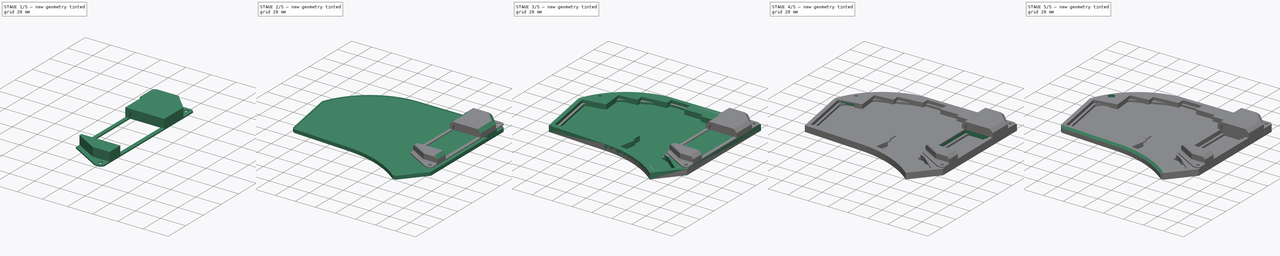
[diagram: build sequence overview — one tinted view per stage of 5, left to right]
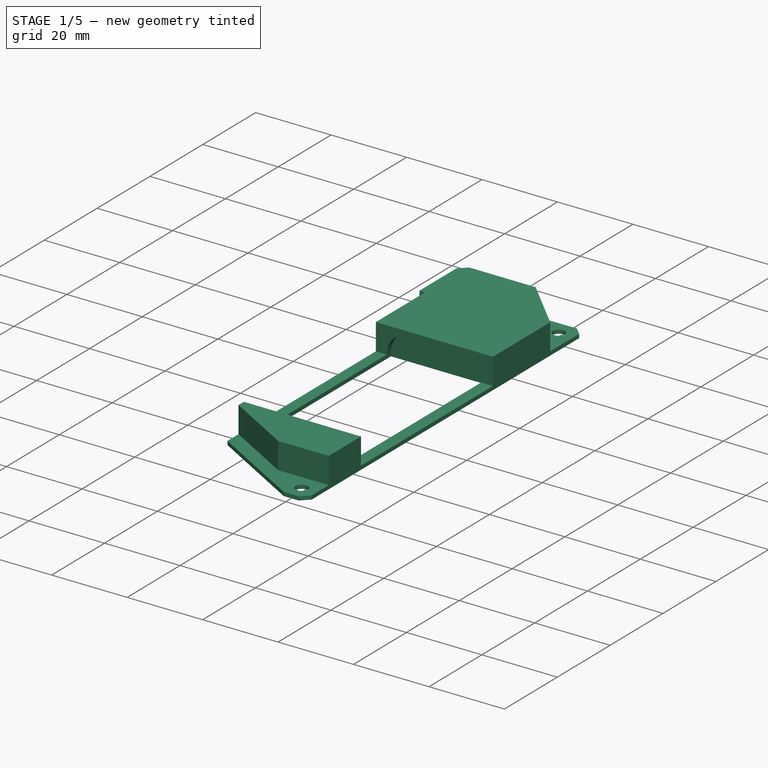
[diagram: stage 1 of 5 — iso view after this stage's code; geometry added in this stage tinted green]
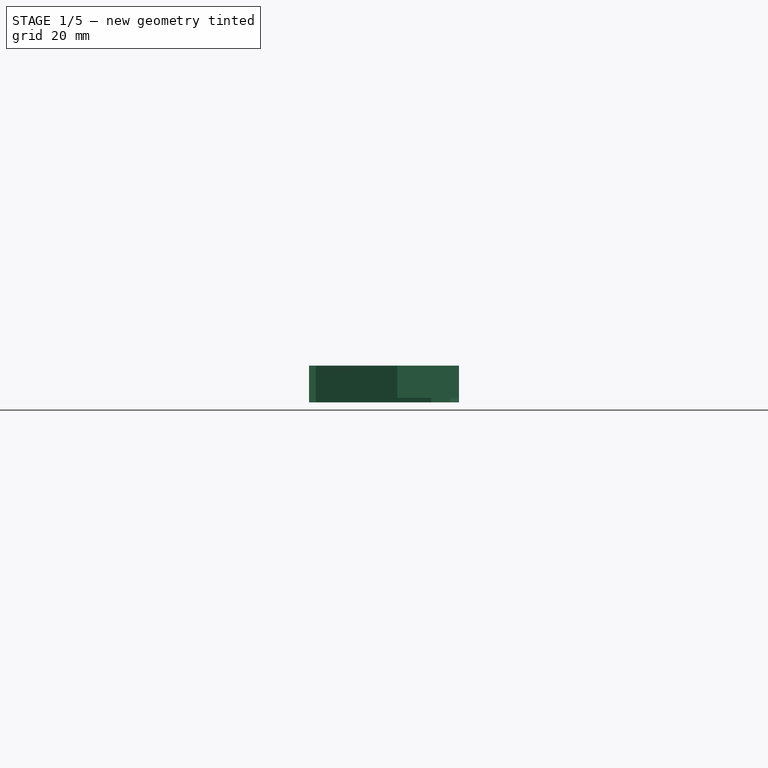
[diagram: stage 1 of 5 — front view after this stage's code; geometry added in this stage tinted green]
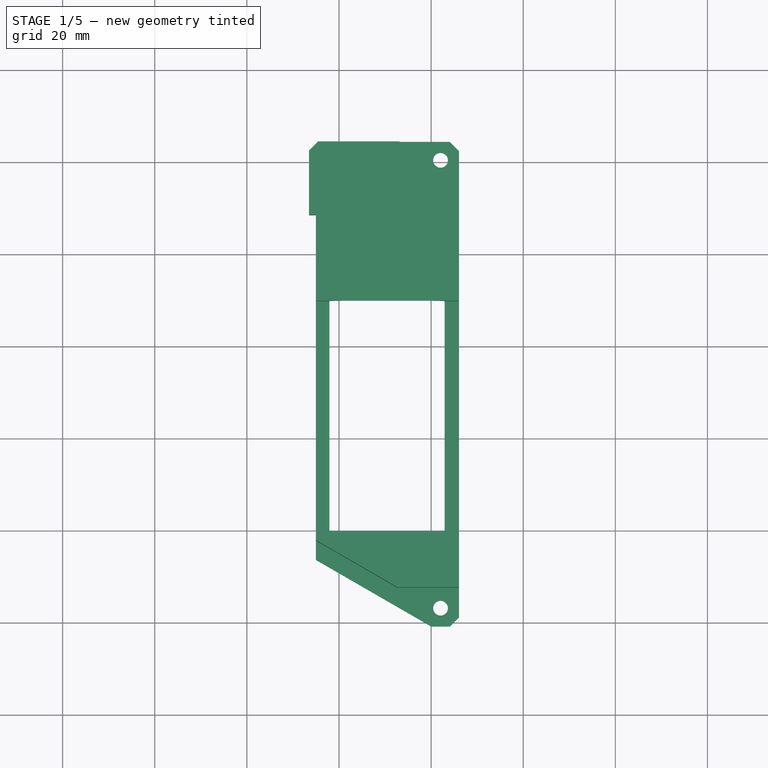
[diagram: stage 1 of 5 — top view after this stage's code; geometry added in this stage tinted green]
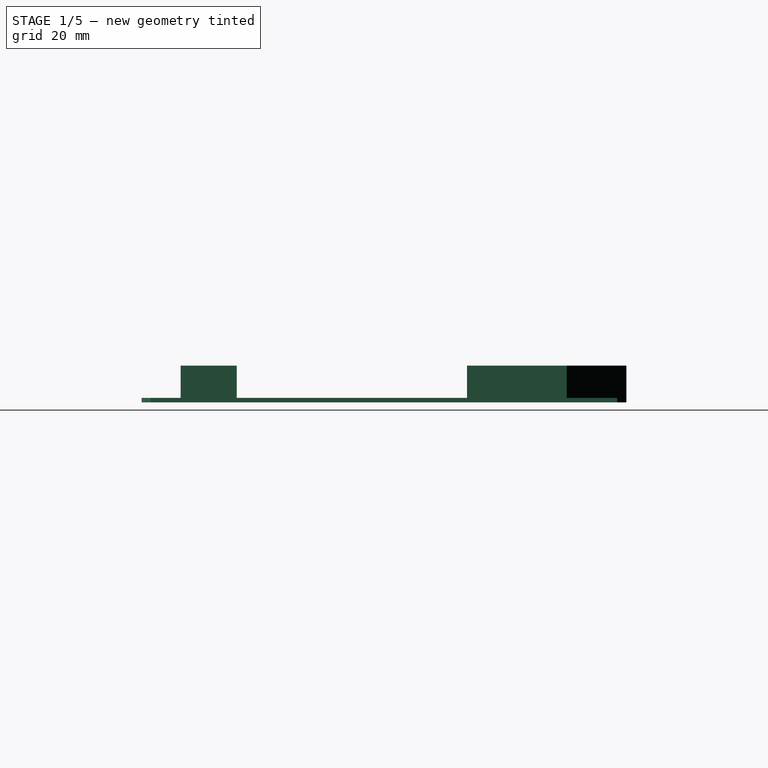
[diagram: stage 1 of 5 — right view after this stage's code; geometry added in this stage tinted green]
FCSTD DOCUMENT  (FreeCAD 0.20RUnknown)
Label: case6
License: All rights reserved
LicenseURL: http://en.wikipedia.org/wiki/All_rights_reserved
objects: Sketcher::SketchObject×22, PartDesign::Pocket×16, PartDesign::Pad×4, PartDesign::Chamfer×4, PartDesign::Body×3, Image::ImagePlane×1, PartDesign::Hole×1
note: 75 computed .brp shape members not serialized (recipe doc carries the construction recipe); baked Part::Feature solids carry a one-line shape summary decoded from their .brp

FEATURE [PartDesign::Body] Body001
  Group = -> [Sketch009,Pad001,Sketch010,Pocket006,Sketch011,Pocket007,Sketch012,Pocket008,Sketch014,Pocket010,Sketch016,Pocket012]
  Origin = -> Origin001
  Placement = pos=(0,0,-3) rot=(0,0,1;0rad)
  Tip = -> Pocket012
FEATURE [Sketcher::SketchObject] Sketch017
  AttachmentOffset = pos=(0,0,6) rot=(0,0,1;0rad)
  FullyConstrained = false
  MapMode = 5
  Placement = pos=(0,0,6) rot=(0,0,1;0rad)
  Support = -> [XY_Plane002]
  sketch-geometry (20):
    g0: LineSegment StartX=114.997 StartY=-89.2938 StartZ=0 EndX=114.997 EndY=-27.1035 EndZ=0
    g1: LineSegment StartX=114.997 StartY=-86.3244 StartZ=0 EndX=114.997 EndY=-11.4734 EndZ=0
    g2: LineSegment StartX=113.499 StartY=-11.4734 StartZ=0 EndX=114.997 EndY=-11.4734 EndZ=0
    g3: LineSegment StartX=115.499 StartY=4.4575 StartZ=0 EndX=144.05 EndY=4.4575 EndZ=0
    g4: LineSegment StartX=144.05 StartY=4.4575 StartZ=0 EndX=146.05 EndY=2.4575 EndZ=0
    g5: LineSegment StartX=146.05 StartY=2.4575 StartZ=0 EndX=146.05 EndY=-98.7939 EndZ=0
    g6: LineSegment StartX=140.059 StartY=-100.794 StartZ=0 EndX=144.05 EndY=-100.794 EndZ=0
    g7: LineSegment StartX=144.05 StartY=-100.794 StartZ=0 EndX=146.05 EndY=-98.7939 EndZ=0
    g8: LineSegment StartX=114.997 StartY=-86.3244 StartZ=0 EndX=140.059 EndY=-100.794 EndZ=0
    g9: LineSegment StartX=113.499 StartY=-11.4734 StartZ=0 EndX=113.499 EndY=2.4575 EndZ=0
    g10: LineSegment StartX=113.499 StartY=2.4575 StartZ=0 EndX=115.499 EndY=4.4575 EndZ=0
    g11: Circle CenterX=142.055 CenterY=-96.7984 CenterZ=0 NormalX=0 NormalY=0 NormalZ=1 AngleXU=0 Radius=1.6
    g12: LineSegment StartX=142.055 StartY=-96.7984 StartZ=0 EndX=144.05 EndY=-100.794 EndZ=0
    g13: LineSegment StartX=142.055 StartY=-96.7984 StartZ=0 EndX=140.059 EndY=-100.794 EndZ=0
    g14: LineSegment StartX=142.055 StartY=-96.7984 StartZ=0 EndX=146.05 EndY=-98.7939 EndZ=0
    g15: LineSegment StartX=119.381 StartY=-30.1372 StartZ=0 EndX=141.381 EndY=-30.1372 EndZ=0
    g16: LineSegment StartX=141.381 StartY=-30.1372 StartZ=0 EndX=141.381 EndY=-80.1372 EndZ=0
    g17: LineSegment StartX=141.381 StartY=-80.1372 StartZ=0 EndX=119.381 EndY=-80.1372 EndZ=0
    g18: LineSegment StartX=119.381 StartY=-80.1372 StartZ=0 EndX=119.381 EndY=-30.1372 EndZ=0
    g19: Circle CenterX=142.051 CenterY=0.456136 CenterZ=0 NormalX=0 NormalY=0 NormalZ=1 AngleXU=0 Radius=1.6
  constraints (52):
    c: Vertical(g0)
    c: DistanceX(g0) = 114.997
    c: DistanceY(g0) = -27.1035
    c: DistanceY(g0) = -89.2938
    c: PointOnObject(g1,g0)
    c: Vertical(g1)
    c: Coincident(g2,g1)
    c: Horizontal(g2)
    c: Horizontal(g3)
    c: Coincident(g4,g3)
    c: Coincident(g5,g4)
    c: Vertical(g5)
    c: Horizontal(g6)
    c: Coincident(g7,g6)
    c: Coincident(g7,g5)
    c: Coincident(g8,g1)
    c: Coincident(g8,g6)
    c: Equal(g7,g4)
    c: DistanceX(g3,g4) = 2
    c: DistanceY(g4,g3) = 2
    c: DistanceX(g3) = 144.05
    c: DistanceY(g3) = 4.4575
    c: Vertical(g3,g6)
    c: Coincident(g9,g2)
    c: Vertical(g9)
    c: Coincident(g10,g9)
    c: Coincident(g10,g3)
    c: Horizontal(g9,g4)
    c: Equal(g10,g4)
    c: Coincident(g12,g11)
    c: Coincident(g12,g6)
    c: Coincident(g13,g11)
    c: Coincident(g13,g6)
    c: Coincident(g14,g11)
    c: Coincident(g14,g5)
    c: Equal(g14,g12)
    c: Equal(g12,g13)
    c: DistanceX(g11) = 142.055
    c: DistanceY(g11) = -96.7984
    c: Coincident(g15,g16)
    c: Coincident(g16,g17)
    c: Coincident(g17,g18)
    c: Coincident(g18,g15)
    c: Horizontal(g15)
    c: Horizontal(g17)
    c: Vertical(g16)
    c: Vertical(g18)
    c: DistanceY(g18,g18) = 50
    c: DistanceX(g15,g15) = 22
    c: Angle(g6,g8) = 2.61799
    c: Radius(g11) = 1.6
    c: Radius(g19) = 1.6
FEATURE [PartDesign::Pad] Pad002
  Direction = (0,0,1)
  Length = 8
  Length2 = 10
  Profile = -> Sketch017
  ReferenceAxis = -> Sketch017 [N_Axis]
  Type = 0
FEATURE [Sketcher::SketchObject] Sketch018
  AttachmentOffset = pos=(0,0,7) rot=(0,0,1;0rad)
  FullyConstrained = false
  MapMode = 5
  Placement = pos=(0,0,7) rot=(0,0,1;0rad)
  Support = -> [XY_Plane002]
  sketch-geometry (35):
    g0: LineSegment StartX=114.997 StartY=-89.2938 StartZ=0 EndX=114.997 EndY=-27.1035 EndZ=0
    g1: LineSegment StartX=114.997 StartY=-86.3244 StartZ=0 EndX=114.997 EndY=-11.4734 EndZ=0
    g2: LineSegment StartX=113.486 StartY=-11.4734 StartZ=0 EndX=114.997 EndY=-11.4734 EndZ=0
    g3: LineSegment StartX=115.486 StartY=4.4575 StartZ=0 EndX=144.05 EndY=4.4575 EndZ=0
    g4: LineSegment StartX=144.05 StartY=4.4575 StartZ=0 EndX=146.05 EndY=2.4575 EndZ=0
    g5: LineSegment StartX=146.05 StartY=2.4575 StartZ=0 EndX=146.05 EndY=-98.7939 EndZ=0
    g6: LineSegment StartX=140.059 StartY=-100.794 StartZ=0 EndX=144.05 EndY=-100.794 EndZ=0
    g7: LineSegment StartX=144.05 StartY=-100.794 StartZ=0 EndX=146.05 EndY=-98.7939 EndZ=0
    g8: LineSegment StartX=114.997 StartY=-86.3244 StartZ=0 EndX=140.059 EndY=-100.794 EndZ=0
    g9: LineSegment StartX=113.486 StartY=-11.4734 StartZ=0 EndX=113.486 EndY=2.4575 EndZ=0
    g10: LineSegment StartX=113.486 StartY=2.4575 StartZ=0 EndX=115.486 EndY=4.4575 EndZ=0
    g11: Circle CenterX=142.055 CenterY=-96.7984 CenterZ=0 NormalX=0 NormalY=0 NormalZ=1 AngleXU=0 Radius=1.6
    g12: LineSegment StartX=142.055 StartY=-96.7984 StartZ=0 EndX=144.05 EndY=-100.794 EndZ=0
    g13: LineSegment StartX=142.055 StartY=-96.7984 StartZ=0 EndX=140.059 EndY=-100.794 EndZ=0
    g14: LineSegment StartX=142.055 StartY=-96.7984 StartZ=0 EndX=146.05 EndY=-98.7939 EndZ=0
    g15: LineSegment StartX=119.381 StartY=-30.1372 StartZ=0 EndX=141.381 EndY=-30.1372 EndZ=0
    g16: LineSegment StartX=141.381 StartY=-30.1372 StartZ=0 EndX=141.381 EndY=-80.1372 EndZ=0
    g17: LineSegment StartX=141.381 StartY=-80.1372 StartZ=0 EndX=119.381 EndY=-80.1372 EndZ=0
    g18: LineSegment StartX=119.381 StartY=-80.1372 StartZ=0 EndX=119.381 EndY=-30.1372 EndZ=0
    g19: LineSegment StartX=142.055 StartY=-96.7984 StartZ=0 EndX=142.055 EndY=-92.3324 EndZ=0
    g20: LineSegment StartX=114.997 StartY=-82.1372 StartZ=0 EndX=114.997 EndY=-86.3244 EndZ=0
    g21: LineSegment StartX=114.997 StartY=-86.3244 StartZ=0 EndX=140.059 EndY=-100.794 EndZ=0
    g22: LineSegment StartX=140.059 StartY=-100.794 StartZ=0 EndX=144.05 EndY=-100.794 EndZ=0
    g23: LineSegment StartX=144.05 StartY=-100.794 StartZ=0 EndX=146.05 EndY=-98.7939 EndZ=0
    g24: LineSegment StartX=146.05 StartY=-98.7939 StartZ=0 EndX=146.05 EndY=-92.3324 EndZ=0
    g25: LineSegment StartX=133.098 StartY=4.4575 StartZ=0 EndX=146.05 EndY=-8.49425 EndZ=0
    g26: LineSegment StartX=146.05 StartY=-8.49425 StartZ=0 EndX=146.05 EndY=4.4575 EndZ=0
    g27: LineSegment StartX=146.05 StartY=4.4575 StartZ=0 EndX=133.098 EndY=4.4575 EndZ=0
    g28: Circle CenterX=142.05 CenterY=0.455153 CenterZ=0 NormalX=0 NormalY=0 NormalZ=1 AngleXU=0 Radius=1.5564
    g29: LineSegment StartX=114.997 StartY=-80.1372 StartZ=0 EndX=146.05 EndY=-80.1372 EndZ=0
    g30: LineSegment StartX=146.05 StartY=-80.1372 StartZ=0 EndX=146.05 EndY=-30.1372 EndZ=0
    g31: LineSegment StartX=146.05 StartY=-30.1372 StartZ=0 EndX=114.997 EndY=-30.1372 EndZ=0
    g32: LineSegment StartX=114.997 StartY=-30.1372 StartZ=0 EndX=114.997 EndY=-80.1372 EndZ=0
    g33: LineSegment StartX=132.656 StartY=-92.3324 StartZ=0 EndX=146.05 EndY=-92.3324 EndZ=0
    g34: LineSegment StartX=114.997 StartY=-82.1372 StartZ=0 EndX=132.656 EndY=-92.3324 EndZ=0
  constraints (96):
    c: Vertical(g0)
    c: DistanceX(g0) = 114.997
    c: DistanceY(g0) = -27.1035
    c: DistanceY(g0) = -89.2938
    c: PointOnObject(g1,g0)
    c: Vertical(g1)
    c: Coincident(g2,g1)
    c: Horizontal(g2)
    c: Horizontal(g3)
    c: Coincident(g4,g3)
    c: Coincident(g5,g4)
    c: Vertical(g5)
    c: Horizontal(g6)
    c: Coincident(g7,g6)
    c: Coincident(g7,g5)
    c: Coincident(g8,g1)
    c: Coincident(g8,g6)
    c: Equal(g7,g4)
    c: DistanceX(g3,g4) = 2
    c: DistanceY(g4,g3) = 2
    c: DistanceX(g3) = 144.05
    c: DistanceY(g3) = 4.4575
    c: Vertical(g3,g6)
    c: Coincident(g9,g2)
    c: Vertical(g9)
    c: Coincident(g10,g9)
    c: Coincident(g10,g3)
    c: Horizontal(g9,g4)
    c: Equal(g10,g4)
    c: Coincident(g12,g11)
    c: Coincident(g12,g6)
    c: Coincident(g13,g11)
    c: Coincident(g13,g6)
    c: Coincident(g14,g11)
    c: Coincident(g14,g5)
    c: Equal(g14,g12)
    c: Equal(g12,g13)
    c: DistanceX(g11) = 142.055
    c: DistanceY(g11) = -96.7984
    c: Coincident(g15,g16)
    c: Coincident(g16,g17)
    c: Coincident(g17,g18)
    c: Coincident(g18,g15)
    c: Horizontal(g15)
    c: Horizontal(g17)
    c: Vertical(g16)
    c: Vertical(g18)
    c: DistanceY(g18,g18) = 50
    c: DistanceX(g15,g15) = 22
    c: Angle(g6,g8) = 2.61799
    c: Radius(g11) = 1.6
    c: PointOnObject(g20,g0)
    c: PointOnObject(g24,g5)
    c: Coincident(g19,g12)
    c: Equal(g19,g14)
    c: DistanceX(g15) = 119.381
    c: DistanceY(g15) = -30.1372
    c: Coincident(g20,g1)
    c: Coincident(g21,g20)
    c: Coincident(g21,g6)
    c: Coincident(g22,g21)
    c: Coincident(g22,g6)
    c: Coincident(g23,g22)
    c: Coincident(g23,g5)
    c: Coincident(g24,g23)
    c: Distance(g19) = 4.46608
    c: PointOnObject(g25,g3)
    c: PointOnObject(g25,g5)
    c: Coincident(g26,g25)
    c: Vertical(g26)
    c: Coincident(g27,g26)
    c: Coincident(g27,g25)
    c: Horizontal(g27)
    c: Angle(g25,g27) = 0.785398
    c: Distance(g28,g25) = 3.5
    c: Distance(g28,g27) = 4.00235
    c: Coincident(g29,g30)
    c: Coincident(g30,g31)
    c: Coincident(g31,g32)
    c: Coincident(g32,g29)
    c: Horizontal(g29)
    c: Horizontal(g31)
    c: Vertical(g30)
    c: Vertical(g32)
    c: PointOnObject(g29,g0)
    c: PointOnObject(g30,g5)
    c: PointOnObject(g15,g31)
    c: PointOnObject(g17,g29)
    c: Horizontal(g33)
    c: PointOnObject(g19,g33)
    c: Perpendicular(g33,g19)
    c: Coincident(g24,g33)
    c: Coincident(g34,g20)
    c: Coincident(g34,g33)
    c: DistanceY(g20,g29) = 2
    c: Parallel(g34,g21)
FEATURE [PartDesign::Pocket] Pocket013
  BaseFeature = -> Pad002
  Direction = (0,0,-1)
  Length = 5
  Length2 = 5
  Profile = -> Sketch018
  ReferenceAxis = -> Sketch018 [N_Axis]
  Reversed = true
  Type = 1
FEATURE [Sketcher::SketchObject] Sketch019
  AttachmentOffset = pos=(0,0,6) rot=(0,0,1;0rad)
  FullyConstrained = false
  MapMode = 5
  Placement = pos=(0,0,6) rot=(0,0,1;0rad)
  Support = -> [XY_Plane002]
  sketch-geometry (24):
    g0: LineSegment StartX=114.997 StartY=-89.2938 StartZ=0 EndX=114.997 EndY=-27.1035 EndZ=0
    g1: LineSegment StartX=114.997 StartY=-86.3244 StartZ=0 EndX=114.997 EndY=-11.4734 EndZ=0
    g2: LineSegment StartX=113.499 StartY=-11.4734 StartZ=0 EndX=114.997 EndY=-11.4734 EndZ=0
    g3: LineSegment StartX=115.499 StartY=4.4575 StartZ=0 EndX=144.05 EndY=4.4575 EndZ=0
    g4: LineSegment StartX=144.05 StartY=4.4575 StartZ=0 EndX=146.05 EndY=2.4575 EndZ=0
    g5: LineSegment StartX=146.05 StartY=2.4575 StartZ=0 EndX=146.05 EndY=-98.7939 EndZ=0
    g6: LineSegment StartX=140.059 StartY=-100.794 StartZ=0 EndX=144.05 EndY=-100.794 EndZ=0
    g7: LineSegment StartX=144.05 StartY=-100.794 StartZ=0 EndX=146.05 EndY=-98.7939 EndZ=0
    g8: LineSegment StartX=114.997 StartY=-86.3244 StartZ=0 EndX=140.059 EndY=-100.794 EndZ=0
    g9: LineSegment StartX=113.499 StartY=-11.4734 StartZ=0 EndX=113.499 EndY=2.4575 EndZ=0
    g10: LineSegment StartX=113.499 StartY=2.4575 StartZ=0 EndX=115.499 EndY=4.4575 EndZ=0
    g11: Circle CenterX=142.055 CenterY=-96.7984 CenterZ=0 NormalX=0 NormalY=0 NormalZ=1 AngleXU=0 Radius=1.6
    g12: LineSegment StartX=142.055 StartY=-96.7984 StartZ=0 EndX=144.05 EndY=-100.794 EndZ=0
    g13: LineSegment StartX=142.055 StartY=-96.7984 StartZ=0 EndX=140.059 EndY=-100.794 EndZ=0
    g14: LineSegment StartX=142.055 StartY=-96.7984 StartZ=0 EndX=146.05 EndY=-98.7939 EndZ=0
    g15: LineSegment StartX=119.381 StartY=-30.1372 StartZ=0 EndX=141.381 EndY=-30.1372 EndZ=0
    g16: LineSegment StartX=141.381 StartY=-30.1372 StartZ=0 EndX=141.381 EndY=-80.1372 EndZ=0
    g17: LineSegment StartX=141.381 StartY=-80.1372 StartZ=0 EndX=119.381 EndY=-80.1372 EndZ=0
    g18: LineSegment StartX=119.381 StartY=-80.1372 StartZ=0 EndX=119.381 EndY=-30.1372 EndZ=0
    g19: LineSegment StartX=115.845 StartY=-26.2546 StartZ=0 EndX=138.885 EndY=-26.2546 EndZ=0
    g20: LineSegment StartX=138.885 StartY=-26.2546 StartZ=0 EndX=138.885 EndY=-3.54752 EndZ=0
    g21: LineSegment StartX=115.845 StartY=-1.27835 StartZ=0 EndX=115.845 EndY=-26.2546 EndZ=0
    g22: LineSegment StartX=115.845 StartY=-1.27835 StartZ=0 EndX=136.616 EndY=-1.27835 EndZ=0
    g23: LineSegment StartX=136.616 StartY=-1.27835 StartZ=0 EndX=138.885 EndY=-3.54752 EndZ=0
  constraints (63):
    c: Vertical(g0)
    c: DistanceX(g0) = 114.997
    c: DistanceY(g0) = -27.1035
    c: DistanceY(g0) = -89.2938
    c: PointOnObject(g1,g0)
    c: Vertical(g1)
    c: Coincident(g2,g1)
    c: Horizontal(g2)
    c: Horizontal(g3)
    c: Coincident(g4,g3)
    c: Coincident(g5,g4)
    c: Vertical(g5)
    c: Horizontal(g6)
    c: Coincident(g7,g6)
    c: Coincident(g7,g5)
    c: Coincident(g8,g1)
    c: Coincident(g8,g6)
    c: Equal(g7,g4)
    c: DistanceX(g3,g4) = 2
    c: DistanceY(g4,g3) = 2
    c: DistanceX(g3) = 144.05
    c: DistanceY(g3) = 4.4575
    c: Vertical(g3,g6)
    c: Coincident(g9,g2)
    c: Vertical(g9)
    c: Coincident(g10,g9)
    c: Coincident(g10,g3)
    c: Horizontal(g9,g4)
    c: Equal(g10,g4)
    c: Coincident(g12,g11)
    c: Coincident(g12,g6)
    c: Coincident(g13,g11)
    c: Coincident(g13,g6)
    c: Coincident(g14,g11)
    c: Coincident(g14,g5)
    c: Equal(g14,g12)
    c: Equal(g12,g13)
    c: DistanceX(g11) = 142.055
    c: DistanceY(g11) = -96.7984
    c: Coincident(g15,g16)
    c: Coincident(g16,g17)
    c: Coincident(g17,g18)
    c: Coincident(g18,g15)
    c: Horizontal(g15)
    c: Horizontal(g17)
    c: Vertical(g16)
    c: Vertical(g18)
    c: DistanceY(g18,g18) = 50
    c: DistanceX(g15,g15) = 22
    c: Angle(g6,g8) = 2.61799
    c: Radius(g11) = 1.6
    c: DistanceX(g15) = 119.381
    c: DistanceY(g15) = -30.1372
    c: Coincident(g19,g20)
    c: Coincident(g21,g19)
    c: Horizontal(g19)
    c: Vertical(g20)
    c: Vertical(g21)
    c: Coincident(g22,g21)
    c: Horizontal(g22)
    c: Coincident(g23,g22)
    c: Coincident(g23,g20)
    c: Angle(g22,g23) = 2.35619
FEATURE [PartDesign::Pocket] Pocket014
  BaseFeature = -> Pocket013
  Direction = (0,0,-1)
  Length = 4
  Length2 = 5
  Profile = -> Sketch019
  ReferenceAxis = -> Sketch019 [N_Axis]
  Reversed = true
  Type = 0
FEATURE [Sketcher::SketchObject] Sketch020
  AttachmentOffset = pos=(0,0,55.13) rot=(0,0,1;0rad)
  FullyConstrained = false
  MapMode = 5
  Placement = pos=(0,-55.13,1.22e-14) rot=(1,0,0;1.5708rad)
  Support = -> [XZ_Plane002]
  sketch-geometry (6):
    g0: ArcOfCircle CenterX=123.927 CenterY=7 CenterZ=0 NormalX=0 NormalY=0 NormalZ=1 AngleXU=0 Radius=6 StartAngle=1.5708 EndAngle=3.14159
    g1: LineSegment StartX=117.927 StartY=7 StartZ=0 EndX=117.927 EndY=0 EndZ=0
    g2: LineSegment StartX=117.927 StartY=0 StartZ=0 EndX=142.927 EndY=0 EndZ=0
    g3: LineSegment StartX=142.927 StartY=0 StartZ=0 EndX=142.927 EndY=7 EndZ=0
    g4: ArcOfCircle CenterX=136.927 CenterY=7 CenterZ=0 NormalX=0 NormalY=0 NormalZ=1 AngleXU=0 Radius=6 StartAngle=0 EndAngle=1.5708
    g5: LineSegment StartX=123.927 StartY=13 StartZ=0 EndX=136.927 EndY=13 EndZ=0
  constraints (15):
    c: Vertical(g1)
    c: Coincident(g2,g1)
    c: Horizontal(g2)
    c: Coincident(g3,g2)
    c: Vertical(g3)
    c: Horizontal(g5)
    c: Horizontal(g3,g0)
    c: Radius(g4) = 6
    c: DistanceX(g2,g2) = 25
    c: Tangent(g1,g0) = -1.5708
    c: Tangent(g5,g0) = 1.5708
    c: Tangent(g5,g4) = 1.5708
    c: Tangent(g4,g3) = -1.5708
    c: DistanceY(g1) = 0
    c: DistanceY(g0) = 13
FEATURE [PartDesign::Pocket] Pocket015
  BaseFeature = -> Pocket014
  Direction = (0,1,-2e-16)
  Length = 53
  Length2 = 5
  Midplane = true
  Profile = -> Sketch020
  ReferenceAxis = -> Sketch020 [N_Axis]
  Type = 0
FEATURE [Sketcher::SketchObject] Sketch021
  AttachmentOffset = pos=(0,0,6) rot=(0,0,1;0rad)
  FullyConstrained = false
  MapMode = 5
  Placement = pos=(0,0,6) rot=(0,0,1;0rad)
  Support = -> [XY_Plane002]
  sketch-geometry (40):
    g0: LineSegment StartX=114.997 StartY=-89.2938 StartZ=0 EndX=114.997 EndY=-27.1035 EndZ=0
    g1: LineSegment StartX=114.997 StartY=-86.3244 StartZ=0 EndX=114.997 EndY=-11.4734 EndZ=0
    g2: LineSegment StartX=113.486 StartY=-11.4734 StartZ=0 EndX=114.997 EndY=-11.4734 EndZ=0
    g3: LineSegment StartX=115.486 StartY=4.4575 StartZ=0 EndX=144.05 EndY=4.4575 EndZ=0
    g4: LineSegment StartX=144.05 StartY=4.4575 StartZ=0 EndX=146.05 EndY=2.4575 EndZ=0
    g5: LineSegment StartX=146.05 StartY=2.4575 StartZ=0 EndX=146.05 EndY=-98.7939 EndZ=0
    g6: LineSegment StartX=140.059 StartY=-100.794 StartZ=0 EndX=144.05 EndY=-100.794 EndZ=0
    g7: LineSegment StartX=144.05 StartY=-100.794 StartZ=0 EndX=146.05 EndY=-98.7939 EndZ=0
    g8: LineSegment StartX=114.997 StartY=-86.3244 StartZ=0 EndX=140.059 EndY=-100.794 EndZ=0
    g9: LineSegment StartX=113.486 StartY=-11.4734 StartZ=0 EndX=113.486 EndY=2.4575 EndZ=0
    g10: LineSegment StartX=113.486 StartY=2.4575 StartZ=0 EndX=115.486 EndY=4.4575 EndZ=0
    g11: Circle CenterX=142.055 CenterY=-96.7984 CenterZ=0 NormalX=0 NormalY=0 NormalZ=1 AngleXU=0 Radius=1.6
    g12: LineSegment StartX=142.055 StartY=-96.7984 StartZ=0 EndX=144.05 EndY=-100.794 EndZ=0
    g13: LineSegment StartX=142.055 StartY=-96.7984 StartZ=0 EndX=140.059 EndY=-100.794 EndZ=0
    g14: LineSegment StartX=142.055 StartY=-96.7984 StartZ=0 EndX=146.05 EndY=-98.7939 EndZ=0
    g15: LineSegment StartX=119.381 StartY=-30.1372 StartZ=0 EndX=141.381 EndY=-30.1372 EndZ=0
    g16: LineSegment StartX=141.381 StartY=-30.1372 StartZ=0 EndX=141.381 EndY=-80.1372 EndZ=0
    g17: LineSegment StartX=141.381 StartY=-80.1372 StartZ=0 EndX=119.381 EndY=-80.1372 EndZ=0
    g18: LineSegment StartX=119.381 StartY=-80.1372 StartZ=0 EndX=119.381 EndY=-30.1372 EndZ=0
    g19: LineSegment StartX=142.055 StartY=-96.7984 StartZ=0 EndX=142.055 EndY=-92.3324 EndZ=0
    g20: LineSegment StartX=114.997 StartY=-82.1372 StartZ=0 EndX=114.997 EndY=-86.3244 EndZ=0
    g21: LineSegment StartX=114.997 StartY=-86.3244 StartZ=0 EndX=140.059 EndY=-100.794 EndZ=0
    g22: LineSegment StartX=140.059 StartY=-100.794 StartZ=0 EndX=144.05 EndY=-100.794 EndZ=0
    g23: LineSegment StartX=144.05 StartY=-100.794 StartZ=0 EndX=146.05 EndY=-98.7939 EndZ=0
    g24: LineSegment StartX=146.05 StartY=-98.7939 StartZ=0 EndX=146.05 EndY=-92.3324 EndZ=0
    g25: LineSegment StartX=133.098 StartY=4.4575 StartZ=0 EndX=146.05 EndY=-8.49425 EndZ=0
    g26: LineSegment StartX=146.05 StartY=-8.49425 StartZ=0 EndX=146.05 EndY=4.4575 EndZ=0
    g27: LineSegment StartX=146.05 StartY=4.4575 StartZ=0 EndX=133.098 EndY=4.4575 EndZ=0
    g28: Circle CenterX=142.05 CenterY=0.455153 CenterZ=0 NormalX=0 NormalY=0 NormalZ=1 AngleXU=0 Radius=1.5564
    g29: LineSegment StartX=114.997 StartY=-80.1372 StartZ=0 EndX=146.05 EndY=-80.1372 EndZ=0
    g30: LineSegment StartX=146.05 StartY=-80.1372 StartZ=0 EndX=146.05 EndY=-30.1372 EndZ=0
    g31: LineSegment StartX=146.05 StartY=-30.1372 StartZ=0 EndX=114.997 EndY=-30.1372 EndZ=0
    g32: LineSegment StartX=114.997 StartY=-30.1372 StartZ=0 EndX=114.997 EndY=-80.1372 EndZ=0
    g33: LineSegment StartX=132.656 StartY=-92.3324 StartZ=0 EndX=146.05 EndY=-92.3324 EndZ=0
    g34: LineSegment StartX=114.997 StartY=-82.1372 StartZ=0 EndX=132.656 EndY=-92.3324 EndZ=0
    g35: LineSegment StartX=120.866 StartY=-80.0212 StartZ=0 EndX=143.063 EndY=-80.0212 EndZ=0
    g36: LineSegment StartX=143.063 StartY=-80.0212 StartZ=0 EndX=143.063 EndY=-90.6387 EndZ=0
    g37: LineSegment StartX=143.063 StartY=-90.6387 StartZ=0 EndX=131.792 EndY=-90.6387 EndZ=0
    g38: LineSegment StartX=120.866 StartY=-80.0212 StartZ=0 EndX=120.866 EndY=-84.2628 EndZ=0
    g39: LineSegment StartX=120.866 StartY=-84.2628 StartZ=0 EndX=131.792 EndY=-90.6387 EndZ=0
  constraints (105):
    c: Vertical(g0)
    c: DistanceX(g0) = 114.997
    c: DistanceY(g0) = -27.1035
    c: DistanceY(g0) = -89.2938
    c: PointOnObject(g1,g0)
    c: Vertical(g1)
    c: Coincident(g2,g1)
    c: Horizontal(g2)
    c: Horizontal(g3)
    c: Coincident(g4,g3)
    c: Coincident(g5,g4)
    c: Vertical(g5)
    c: Horizontal(g6)
    c: Coincident(g7,g6)
    c: Coincident(g7,g5)
    c: Coincident(g8,g1)
    c: Coincident(g8,g6)
    c: Equal(g7,g4)
    c: DistanceX(g3,g4) = 2
    c: DistanceY(g4,g3) = 2
    c: DistanceX(g3) = 144.05
    c: DistanceY(g3) = 4.4575
    c: Vertical(g3,g6)
    c: Coincident(g9,g2)
    c: Vertical(g9)
    c: Coincident(g10,g9)
    c: Coincident(g10,g3)
    c: Horizontal(g9,g4)
    c: Equal(g10,g4)
    c: Coincident(g12,g11)
    c: Coincident(g12,g6)
    c: Coincident(g13,g11)
    c: Coincident(g13,g6)
    c: Coincident(g14,g11)
    c: Coincident(g14,g5)
    c: Equal(g14,g12)
    c: Equal(g12,g13)
    c: DistanceX(g11) = 142.055
    c: DistanceY(g11) = -96.7984
    c: Coincident(g15,g16)
    c: Coincident(g16,g17)
    c: Coincident(g17,g18)
    c: Coincident(g18,g15)
    c: Horizontal(g15)
    c: Horizontal(g17)
    c: Vertical(g16)
    c: Vertical(g18)
    c: DistanceY(g18,g18) = 50
    c: DistanceX(g15,g15) = 22
    c: Angle(g6,g8) = 2.61799
    c: Radius(g11) = 1.6
    c: PointOnObject(g20,g0)
    c: PointOnObject(g24,g5)
    c: Coincident(g19,g12)
    c: Equal(g19,g14)
    c: DistanceX(g15) = 119.381
    c: DistanceY(g15) = -30.1372
    c: Coincident(g20,g1)
    c: Coincident(g21,g20)
    c: Coincident(g21,g6)
    c: Coincident(g22,g21)
    c: Coincident(g22,g6)
    c: Coincident(g23,g22)
    c: Coincident(g23,g5)
    c: Coincident(g24,g23)
    c: Distance(g19) = 4.46608
    c: PointOnObject(g25,g3)
    c: PointOnObject(g25,g5)
    c: Coincident(g26,g25)
    c: Vertical(g26)
    c: Coincident(g27,g26)
    c: Coincident(g27,g25)
    c: Horizontal(g27)
    c: Angle(g25,g27) = 0.785398
    c: Distance(g28,g25) = 3.5
    c: Distance(g28,g27) = 4.00235
    c: Coincident(g29,g30)
    c: Coincident(g30,g31)
    c: Coincident(g31,g32)
    c: Coincident(g32,g29)
    c: Horizontal(g29)
    c: Horizontal(g31)
    c: Vertical(g30)
    c: Vertical(g32)
    c: PointOnObject(g29,g0)
    c: PointOnObject(g30,g5)
    c: PointOnObject(g15,g31)
    c: PointOnObject(g17,g29)
    c: Horizontal(g33)
    c: PointOnObject(g19,g33)
    c: Perpendicular(g33,g19)
    c: Coincident(g24,g33)
    c: Coincident(g34,g20)
    c: Coincident(g34,g33)
    c: DistanceY(g20,g29) = 2
    c: Parallel(g34,g21)
    c: Horizontal(g35)
    c: Coincident(g36,g35)
    c: Vertical(g36)
    c: Coincident(g37,g36)
    c: Horizontal(g37)
    c: Coincident(g38,g35)
    c: Coincident(g39,g38)
    c: Coincident(g39,g37)
    c: Vertical(g38)
FEATURE [PartDesign::Pocket] Pocket016
  BaseFeature = -> Pocket015
  Direction = (0,0,-1)
  Length = 6
  Length2 = 5
  Profile = -> Sketch021
  ReferenceAxis = -> Sketch021 [N_Axis]
  Reversed = true
  Type = 0
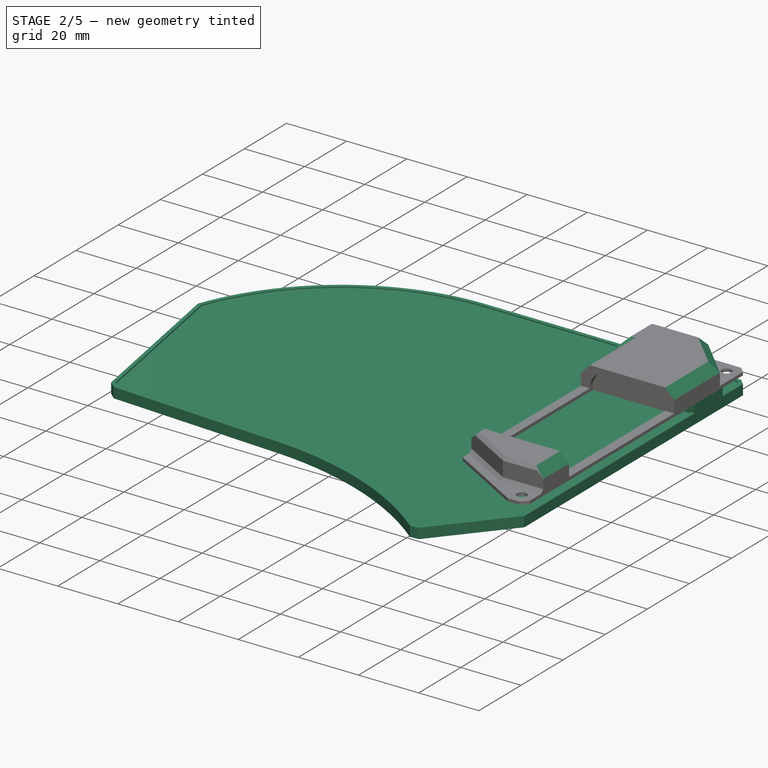
[diagram: stage 2 of 5 — iso view after this stage's code; geometry added in this stage tinted green]
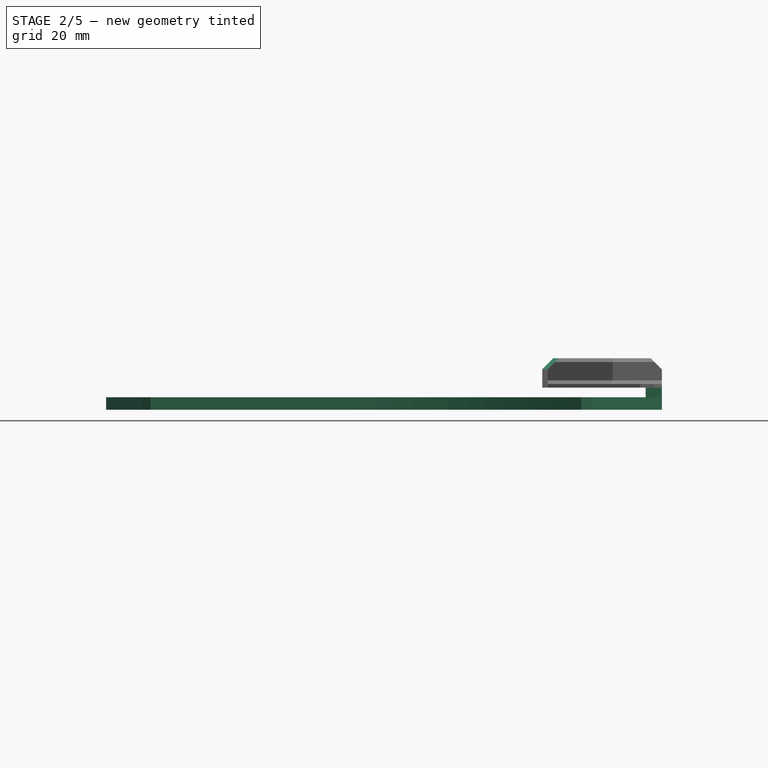
[diagram: stage 2 of 5 — front view after this stage's code; geometry added in this stage tinted green]
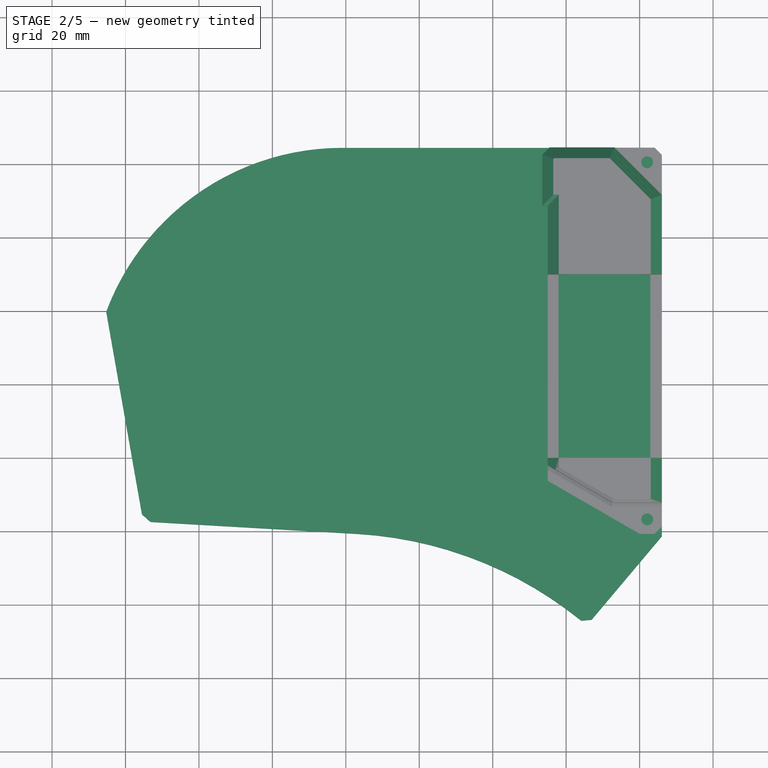
[diagram: stage 2 of 5 — top view after this stage's code; geometry added in this stage tinted green]
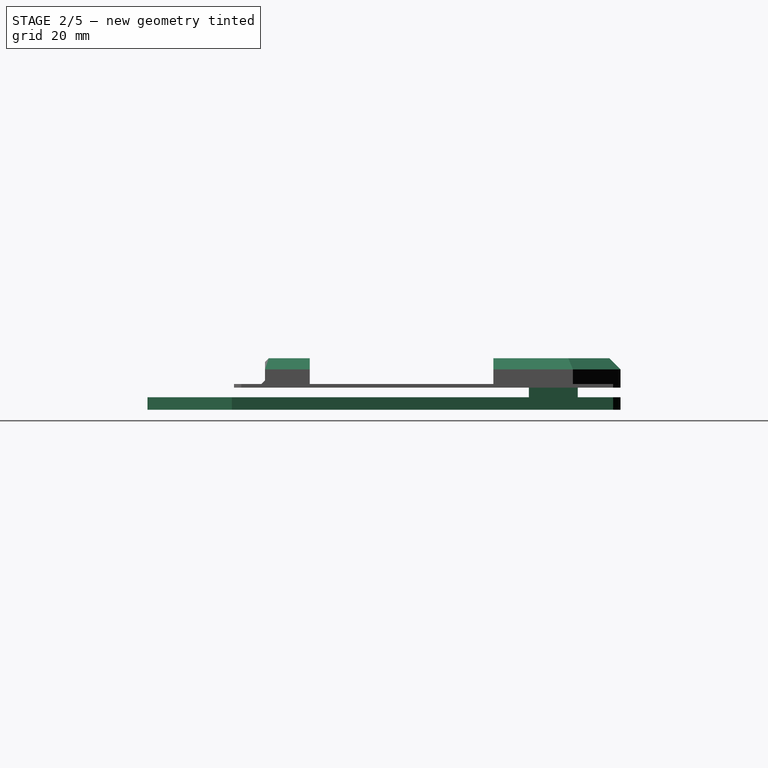
[diagram: stage 2 of 5 — right view after this stage's code; geometry added in this stage tinted green]
FEATURE [Sketcher::SketchObject] Sketch009  label="edge_cuts_proper003"
  AttachmentOffset = pos=(-70.9,59.5,0) rot=(0,0,1;0rad)
  ExternalGeometry = -> [Sketch]
  FullyConstrained = false
  MapMode = 5
  Placement = pos=(-70.9,59.5,0) rot=(0,0,1;0rad)
  Support = -> [XY_Plane001]
  sketch-geometry (33):
    g0: LineSegment StartX=89.95 StartY=-77.0425 StartZ=0 EndX=130.95 EndY=-60.0425 EndZ=0
    g1: LineSegment StartX=130.95 StartY=-60.0425 StartZ=0 EndX=208.95 EndY=-60.0425 EndZ=0
    g2: LineSegment StartX=208.95 StartY=-60.0425 StartZ=0 EndX=208.95 EndY=-88.0425 EndZ=0
    g3: LineSegment StartX=208.95 StartY=-88.0425 StartZ=0 EndX=184.95 EndY=-88.0425 EndZ=0
    g4: LineSegment StartX=184.95 StartY=-88.0425 StartZ=0 EndX=184.95 EndY=-148.043 EndZ=0
    g5: LineSegment StartX=184.95 StartY=-148.043 StartZ=0 EndX=198.95 EndY=-148.043 EndZ=0
    g6: LineSegment StartX=198.95 StartY=-148.043 StartZ=0 EndX=211.95 EndY=-159.043 EndZ=0
    g7: LineSegment StartX=211.95 StartY=-159.043 StartZ=0 EndX=195.95 EndY=-178.043 EndZ=0
    g8: LineSegment StartX=195.95 StartY=-178.043 StartZ=0 EndX=182.95 EndY=-167.043 EndZ=0
    g9: LineSegment StartX=182.95 StartY=-167.043 StartZ=0 EndX=165.95 EndY=-159.043 EndZ=0
    g10: LineSegment StartX=165.95 StartY=-159.043 StartZ=0 EndX=148.95 EndY=-156.043 EndZ=0
    g11: LineSegment StartX=148.95 StartY=-156.043 StartZ=0 EndX=79.95 EndY=-152.043 EndZ=0
    g12: LineSegment StartX=79.95 StartY=-152.043 StartZ=0 EndX=70.95 EndY=-101.042 EndZ=0
    g13: LineSegment StartX=70.95 StartY=-101.042 StartZ=0 EndX=89.95 EndY=-77.0425 EndZ=0
    g14: ArcOfCircle CenterX=129.955 CenterY=-123.689 CenterZ=0 NormalX=0 NormalY=0 NormalZ=1 AngleXU=0 Radius=68.6469 StartAngle=1.5708 EndAngle=2.78459
    g15: Circle CenterX=212.95 CenterY=-59.0425 CenterZ=0 NormalX=0 NormalY=0 NormalZ=1 AngleXU=0 Radius=1.6
    g16: Circle CenterX=212.95 CenterY=-156.303 CenterZ=0 NormalX=0 NormalY=0 NormalZ=1 AngleXU=0 Radius=1.6
    g17: Circle CenterX=77.4441 CenterY=-85.9816 CenterZ=0 NormalX=0 NormalY=0 NormalZ=1 AngleXU=0 Radius=1.6
    g18: LineSegment StartX=65.6358 StartY=-99.6998 StartZ=0 EndX=75.3657 EndY=-154.836 EndZ=0
    g19: LineSegment StartX=75.3657 StartY=-154.836 StartZ=0 EndX=75.7132 EndY=-156.805 EndZ=0
    g20: LineSegment StartX=75.7132 StartY=-156.805 StartZ=0 EndX=77.7099 EndY=-156.921 EndZ=0
    g21: LineSegment StartX=77.7099 StartY=-156.921 StartZ=0 EndX=133.969 EndY=-160.182 EndZ=0
    g22: ArcOfCircle CenterX=127.792 CenterY=-266.743 CenterZ=0 NormalX=0 NormalY=0 NormalZ=1 AngleXU=0 Radius=106.74 StartAngle=0.870903 EndAngle=0.889641
    g23: ArcOfCircle CenterX=127.792 CenterY=-266.743 CenterZ=0 NormalX=0 NormalY=0 NormalZ=1 AngleXU=0 Radius=106.74 StartAngle=0.889641 EndAngle=1.51289
    g24: LineSegment StartX=196.546 StartY=-185.097 StartZ=0 EndX=197.835 EndY=-183.567 EndZ=0
    g25: LineSegment StartX=197.835 StartY=-183.567 StartZ=0 EndX=216.95 EndY=-160.867 EndZ=0
    g26: LineSegment StartX=216.95 StartY=-160.867 StartZ=0 EndX=216.95 EndY=-57.0425 EndZ=0
    g27: LineSegment StartX=216.95 StartY=-57.0425 StartZ=0 EndX=216.95 EndY=-55.0425 EndZ=0
    g28: LineSegment StartX=216.95 StartY=-55.0425 StartZ=0 EndX=214.95 EndY=-55.0425 EndZ=0
    g29: LineSegment StartX=214.95 StartY=-55.0425 StartZ=0 EndX=129.955 EndY=-55.0425 EndZ=0
    g30: LineSegment StartX=214.95 StartY=-55.0425 StartZ=0 EndX=216.95 EndY=-57.0425 EndZ=0
    g31: LineSegment StartX=195.004 StartY=-183.823 StartZ=0 EndX=197.835 EndY=-183.567 EndZ=0
    g32: LineSegment StartX=75.3657 StartY=-154.836 StartZ=0 EndX=77.7099 EndY=-156.921 EndZ=0
  constraints (86):
    c: Coincident(g0,g-3)
    c: Coincident(g0,g-16)
    c: Coincident(g1,g0)
    c: Coincident(g1,g-15)
    c: Coincident(g2,g1)
    c: Coincident(g2,g-14)
    c: Coincident(g3,g2)
    c: Coincident(g3,g-13)
    c: Coincident(g4,g3)
    c: Coincident(g4,g-12)
    c: Coincident(g5,g4)
    c: Coincident(g5,g-11)
    c: Coincident(g6,g5)
    c: Coincident(g6,g-10)
    c: Coincident(g7,g6)
    c: Coincident(g7,g-9)
    c: Coincident(g8,g7)
    c: Coincident(g8,g-8)
    c: Coincident(g9,g8)
    c: Coincident(g9,g-7)
    c: Coincident(g10,g9)
    c: Coincident(g10,g-6)
    c: Coincident(g11,g10)
    c: Coincident(g11,g-5)
    c: Coincident(g12,g11)
    c: Coincident(g12,g-4)
    c: Coincident(g13,g12)
    c: Coincident(g13,g0)
    c: Coincident(g20,g19)
    c: Tangent(g23,g21) = 1.5708
    c: Coincident(g24,g22)
    c: Coincident(g26,g25)
    c: Coincident(g28,g27)
    c: Coincident(g14,g18)
    c: Tangent(g14,g29) = -1.5708
    c: Distance(g22,g8) = 5
    c: Distance(g18,g13) = 5
    c: Distance(g29,g0) = 5
    c: DistanceX(g1,g27) = 8
    c: Radius(g15) = 1.6
    c: Equal(g15,g16)
    c: Vertical(g16,g15)
    c: DistanceX(g15,g27) = 4
    c: DistanceY(g15,g27) = 4
    c: Equal(g15,g17)
    c: DistanceY(g16,g15) = 97.26
    c: Radius(g14) = 68.6469
    c: Distance(g17,g14) = 64.6469
    c: Coincident(g18,g19)
    c: Parallel(g18,g12)
    c: Parallel(g19,g12)
    c: Distance(g12,g18) = 5
    c: Coincident(g20,g21)
    c: Parallel(g11,g20)
    c: Parallel(g11,g21)
    c: Distance(g11,g21) = 5
    c: Coincident(g22,g23)
    c: Coincident(g22,g23)
    c: Radius(g22) = 106.74
    c: Radius(g23) = 106.74
    c: Coincident(g24,g25)
    c: Parallel(g24,g7)
    c: Parallel(g25,g7)
    c: Distance(g6,g25) = 5
    c: Distance(g16,g25) = 6
    c: Perpendicular(g22,g24)
    c: Coincident(g26,g27)
    c: Vertical(g26)
    c: Vertical(g27)
    c: Distance(g6,g26) = 5
    c: Coincident(g28,g29)
    c: Horizontal(g28)
    c: Horizontal(g29)
    c: Distance(g1,g29) = 5
    c: Coincident(g30,g28)
    c: Coincident(g30,g26)
    c: DistanceX(g29,g27) = 2
    c: DistanceY(g26,g27) = 2
    c: Coincident(g31,g22)
    c: Coincident(g31,g24)
    c: Distance(g22,g22) = 2
    c: Distance(g24,g22) = 2
    c: Distance(g20,g19) = 2
    c: Distance(g18,g19) = 2
    c: Coincident(g32,g18)
    c: Coincident(g32,g20)
FEATURE [PartDesign::Pad] Pad001
  Direction = (0,0,1)
  Length = 3.4
  Length2 = 10
  Profile = -> Sketch009
  ReferenceAxis = -> Sketch009 [N_Axis]
  Type = 0
FEATURE [Sketcher::SketchObject] Sketch010  label="edge_cuts_proper004"
  AttachmentOffset = pos=(-70.9,59.5,3.4) rot=(0,0,1;0rad)
  ExternalGeometry = -> [Sketch]
  FullyConstrained = false
  MapMode = 5
  Placement = pos=(-70.9,59.5,3.4) rot=(0,0,1;0rad)
  Support = -> [XY_Plane001]
  sketch-geometry (43):
    g0: LineSegment StartX=89.95 StartY=-77.0425 StartZ=0 EndX=130.95 EndY=-60.0425 EndZ=0
    g1: LineSegment StartX=130.95 StartY=-60.0425 StartZ=0 EndX=208.95 EndY=-60.0425 EndZ=0
    g2: LineSegment StartX=208.95 StartY=-60.0425 StartZ=0 EndX=208.95 EndY=-88.0425 EndZ=0
    g3: LineSegment StartX=208.95 StartY=-88.0425 StartZ=0 EndX=184.95 EndY=-88.0425 EndZ=0
    g4: LineSegment StartX=184.95 StartY=-88.0425 StartZ=0 EndX=184.95 EndY=-148.043 EndZ=0
    g5: LineSegment StartX=184.95 StartY=-148.043 StartZ=0 EndX=198.95 EndY=-148.043 EndZ=0
    g6: LineSegment StartX=198.95 StartY=-148.043 StartZ=0 EndX=211.95 EndY=-159.043 EndZ=0
    g7: LineSegment StartX=211.95 StartY=-159.043 StartZ=0 EndX=195.95 EndY=-178.043 EndZ=0
    g8: LineSegment StartX=195.95 StartY=-178.043 StartZ=0 EndX=182.95 EndY=-167.043 EndZ=0
    g9: LineSegment StartX=182.95 StartY=-167.043 StartZ=0 EndX=165.95 EndY=-159.043 EndZ=0
    g10: LineSegment StartX=165.95 StartY=-159.043 StartZ=0 EndX=148.95 EndY=-156.043 EndZ=0
    g11: LineSegment StartX=148.95 StartY=-156.043 StartZ=0 EndX=79.95 EndY=-152.043 EndZ=0
    g12: LineSegment StartX=79.95 StartY=-152.043 StartZ=0 EndX=70.95 EndY=-101.042 EndZ=0
    g13: LineSegment StartX=70.95 StartY=-101.042 StartZ=0 EndX=89.95 EndY=-77.0425 EndZ=0
    g14: ArcOfCircle CenterX=129.955 CenterY=-123.689 CenterZ=0 NormalX=0 NormalY=0 NormalZ=1 AngleXU=0 Radius=68.6469 StartAngle=1.5708 EndAngle=2.78459
    g15: Circle CenterX=212.95 CenterY=-59.0425 CenterZ=0 NormalX=0 NormalY=0 NormalZ=1 AngleXU=0 Radius=1.6
    g16: Circle CenterX=212.95 CenterY=-156.303 CenterZ=0 NormalX=0 NormalY=0 NormalZ=1 AngleXU=0 Radius=1.6
    g17: Circle CenterX=77.4441 CenterY=-85.9816 CenterZ=0 NormalX=0 NormalY=0 NormalZ=1 AngleXU=0 Radius=1.6
    g18: LineSegment StartX=65.6358 StartY=-99.6998 StartZ=0 EndX=75.3657 EndY=-154.836 EndZ=0
    g19: LineSegment StartX=75.3657 StartY=-154.836 StartZ=0 EndX=75.7132 EndY=-156.805 EndZ=0
    g20: LineSegment StartX=75.7132 StartY=-156.805 StartZ=0 EndX=77.7099 EndY=-156.921 EndZ=0
    g21: LineSegment StartX=77.7099 StartY=-156.921 StartZ=0 EndX=133.969 EndY=-160.182 EndZ=0
    g22: ArcOfCircle CenterX=127.792 CenterY=-266.743 CenterZ=0 NormalX=0 NormalY=0 NormalZ=1 AngleXU=0 Radius=106.74 StartAngle=0.870903 EndAngle=0.889641
    g23: ArcOfCircle CenterX=127.792 CenterY=-266.743 CenterZ=0 NormalX=0 NormalY=0 NormalZ=1 AngleXU=0 Radius=106.74 StartAngle=0.889641 EndAngle=1.51289
    g24: LineSegment StartX=196.546 StartY=-185.097 StartZ=0 EndX=197.835 EndY=-183.567 EndZ=0
    g25: LineSegment StartX=197.835 StartY=-183.567 StartZ=0 EndX=216.95 EndY=-160.867 EndZ=0
    g26: LineSegment StartX=216.95 StartY=-160.867 StartZ=0 EndX=216.95 EndY=-57.0425 EndZ=0
    g27: LineSegment StartX=216.95 StartY=-57.0425 StartZ=0 EndX=216.95 EndY=-55.0425 EndZ=0
    g28: LineSegment StartX=216.95 StartY=-55.0425 StartZ=0 EndX=214.95 EndY=-55.0425 EndZ=0
    g29: LineSegment StartX=214.95 StartY=-55.0425 StartZ=0 EndX=129.955 EndY=-55.0425 EndZ=0
    g30: LineSegment StartX=214.95 StartY=-55.0425 StartZ=0 EndX=216.95 EndY=-57.0425 EndZ=0
    g31: LineSegment StartX=195.004 StartY=-183.823 StartZ=0 EndX=197.835 EndY=-183.567 EndZ=0
    g32: LineSegment StartX=75.3657 StartY=-154.836 StartZ=0 EndX=77.7099 EndY=-156.921 EndZ=0
    g33: ArcOfCircle CenterX=129.955 CenterY=-123.689 CenterZ=0 NormalX=0 NormalY=0 NormalZ=1 AngleXU=0 Radius=67.4469 StartAngle=1.5708 EndAngle=2.77977
    g34: ArcOfCircle CenterX=127.792 CenterY=-266.743 CenterZ=0 NormalX=0 NormalY=0 NormalZ=1 AngleXU=0 Radius=107.94 StartAngle=0.894165 EndAngle=1.51289
    g35: LineSegment StartX=195.38 StartY=-182.584 StartZ=0 EndX=197.235 EndY=-182.416 EndZ=0
    g36: LineSegment StartX=197.235 StartY=-182.416 StartZ=0 EndX=215.75 EndY=-160.429 EndZ=0
    g37: LineSegment StartX=215.75 StartY=-160.429 StartZ=0 EndX=215.75 EndY=-57.5396 EndZ=0
    g38: LineSegment StartX=215.75 StartY=-57.5396 StartZ=0 EndX=214.453 EndY=-56.2425 EndZ=0
    g39: LineSegment StartX=214.453 StartY=-56.2425 StartZ=0 EndX=129.955 EndY=-56.2425 EndZ=0
    g40: LineSegment StartX=66.8746 StartY=-99.8145 StartZ=0 EndX=76.4749 EndY=-154.216 EndZ=0
    g41: LineSegment StartX=76.4749 StartY=-154.216 StartZ=0 EndX=78.1958 EndY=-155.747 EndZ=0
    g42: LineSegment StartX=78.1958 StartY=-155.747 StartZ=0 EndX=134.038 EndY=-158.984 EndZ=0
  constraints (114):
    c: Coincident(g0,g-3)
    c: Coincident(g0,g-16)
    c: Coincident(g1,g0)
    c: Coincident(g1,g-15)
    c: Coincident(g2,g1)
    c: Coincident(g2,g-14)
    c: Coincident(g3,g2)
    c: Coincident(g3,g-13)
    c: Coincident(g4,g3)
    c: Coincident(g4,g-12)
    c: Coincident(g5,g4)
    c: Coincident(g5,g-11)
    c: Coincident(g6,g5)
    c: Coincident(g6,g-10)
    c: Coincident(g7,g6)
    c: Coincident(g7,g-9)
    c: Coincident(g8,g7)
    c: Coincident(g8,g-8)
    c: Coincident(g9,g8)
    c: Coincident(g9,g-7)
    c: Coincident(g10,g9)
    c: Coincident(g10,g-6)
    c: Coincident(g11,g10)
    c: Coincident(g11,g-5)
    c: Coincident(g12,g11)
    c: Coincident(g12,g-4)
    c: Coincident(g13,g12)
    c: Coincident(g13,g0)
    c: Coincident(g20,g19)
    c: Tangent(g23,g21) = 1.5708
    c: Coincident(g24,g22)
    c: Coincident(g26,g25)
    c: Coincident(g28,g27)
    c: Coincident(g14,g18)
    c: Tangent(g14,g29) = -1.5708
    c: Distance(g22,g8) = 5
    c: Distance(g18,g13) = 5
    c: Distance(g29,g0) = 5
    c: DistanceX(g1,g27) = 8
    c: Radius(g15) = 1.6
    c: Equal(g15,g16)
    c: Vertical(g16,g15)
    c: DistanceX(g15,g27) = 4
    c: DistanceY(g15,g27) = 4
    c: Equal(g15,g17)
    c: DistanceY(g16,g15) = 97.26
    c: Radius(g14) = 68.6469
    c: Distance(g17,g14) = 64.6469
    c: Coincident(g18,g19)
    c: Parallel(g18,g12)
    c: Parallel(g19,g12)
    c: Distance(g12,g18) = 5
    c: Coincident(g20,g21)
    c: Parallel(g11,g20)
    c: Parallel(g11,g21)
    c: Distance(g11,g21) = 5
    c: Coincident(g22,g23)
    c: Coincident(g22,g23)
    c: Radius(g22) = 106.74
    c: Radius(g23) = 106.74
    c: Coincident(g24,g25)
    c: Parallel(g24,g7)
    c: Parallel(g25,g7)
    c: Distance(g6,g25) = 5
    c: Distance(g16,g25) = 6
    c: Perpendicular(g22,g24)
    c: Coincident(g26,g27)
    c: Vertical(g26)
    c: Vertical(g27)
    c: Distance(g6,g26) = 5
    c: Coincident(g28,g29)
    c: Horizontal(g28)
    c: Horizontal(g29)
    c: Distance(g1,g29) = 5
    c: Coincident(g30,g28)
    c: Coincident(g30,g26)
    c: DistanceX(g29,g27) = 2
    c: DistanceY(g26,g27) = 2
    c: Coincident(g31,g22)
    c: Coincident(g31,g24)
    c: Distance(g22,g22) = 2
    c: Distance(g24,g22) = 2
    c: Distance(g20,g19) = 2
    c: Distance(g18,g19) = 2
    c: Coincident(g32,g18)
    c: Coincident(g32,g20)
    c: Coincident(g33,g14)
    c: Coincident(g34,g22)
    c: Coincident(g35,g34)
    c: Coincident(g36,g35)
    c: Coincident(g37,g36)
    c: Vertical(g37)
    c: Coincident(g38,g37)
    c: Coincident(g39,g38)
    c: Horizontal(g39)
    c: Coincident(g40,g33)
    c: Coincident(g41,g40)
    c: Coincident(g42,g41)
    c: Parallel(g21,g42)
    c: Parallel(g18,g40)
    c: Parallel(g32,g41)
    c: Parallel(g30,g38)
    c: Parallel(g25,g36)
    c: Parallel(g31,g35)
    c: Tangent(g42,g34) = 1.5708
    c: Tangent(g39,g33) = -1.5708
    c: Distance(g14,g33) = 1.2
    c: Distance(g34,g21) = 1.2
    c: Distance(g40,g18) = 1.2
    c: Distance(g41,g32) = 1.2
    c: Distance(g38,g30) = 1.2
    c: Distance(g37,g26) = 1.2
    c: Distance(g36,g25) = 1.2
    c: Distance(g35,g31) = 1.2
FEATURE [PartDesign::Pocket] Pocket006
  BaseFeature = -> Pad001
  Direction = (0,0,-1)
  Length = 0.4
  Length2 = 5
  Profile = -> Sketch010
  ReferenceAxis = -> Sketch010 [N_Axis]
  Type = 0
FEATURE [PartDesign::Chamfer] Chamfer002
  Angle = 45
  Base = -> Pocket016 [Edge43,Edge51,Edge39,Edge46,Edge49,Edge60,Edge65,Edge110,Edge55]
  BaseFeature = -> Pocket016
  ChamferType = 0
  FlipDirection = false
  Size = 3
  Size2 = 1
  SupportTransform = false
  UseAllEdges = false
FEATURE [PartDesign::Chamfer] Chamfer003
  Angle = 45
  Base = -> Chamfer002 [Edge59,Edge49,Edge50,Edge138]
  BaseFeature = -> Chamfer002
  ChamferType = 0
  FlipDirection = false
  Size = 1
  Size2 = 1
  SupportTransform = false
  UseAllEdges = false
FEATURE [Sketcher::SketchObject] Sketch022
  ExternalGeometry = -> [Chamfer003]
  FullyConstrained = false
  MapMode = 5
  Placement = pos=(0,0,6) rot=(1,0,0;3.14159rad)
  Support = -> [Chamfer003]
  sketch-geometry (4):
    g0: LineSegment StartX=146.05 StartY=20.4852 StartZ=0 EndX=141.65 EndY=20.4852 EndZ=0
    g1: LineSegment StartX=141.65 StartY=20.4852 StartZ=0 EndX=141.65 EndY=7.15177 EndZ=0
    g2: LineSegment StartX=141.65 StartY=7.15177 StartZ=0 EndX=146.05 EndY=7.15177 EndZ=0
    g3: LineSegment StartX=146.05 StartY=7.15177 StartZ=0 EndX=146.05 EndY=20.4852 EndZ=0
  constraints (9):
    c: Coincident(g0,g1)
    c: Coincident(g1,g2)
    c: Coincident(g2,g3)
    c: Coincident(g3,g0)
    c: Horizontal(g0)
    c: Horizontal(g2)
    c: Vertical(g1)
    c: Vertical(g3)
    c: PointOnObject(g0,g-3)
FEATURE [PartDesign::Pad] Pad003
  BaseFeature = -> Chamfer003
  Direction = (0,0,-1)
  Length = 3.8
  Length2 = 10
  Profile = -> Sketch022
  ReferenceAxis = -> Sketch022 [N_Axis]
  Type = 0
FEATURE [PartDesign::Body] Body002
  Group = -> [Sketch017,Pad002,Sketch018,Pocket013,Sketch019,Pocket014,Sketch020,Pocket015,Sketch021,Pocket016,Chamfer002,Chamfer003,Sketch022,Pad003]
  Origin = -> Origin002
  Tip = -> Pad003
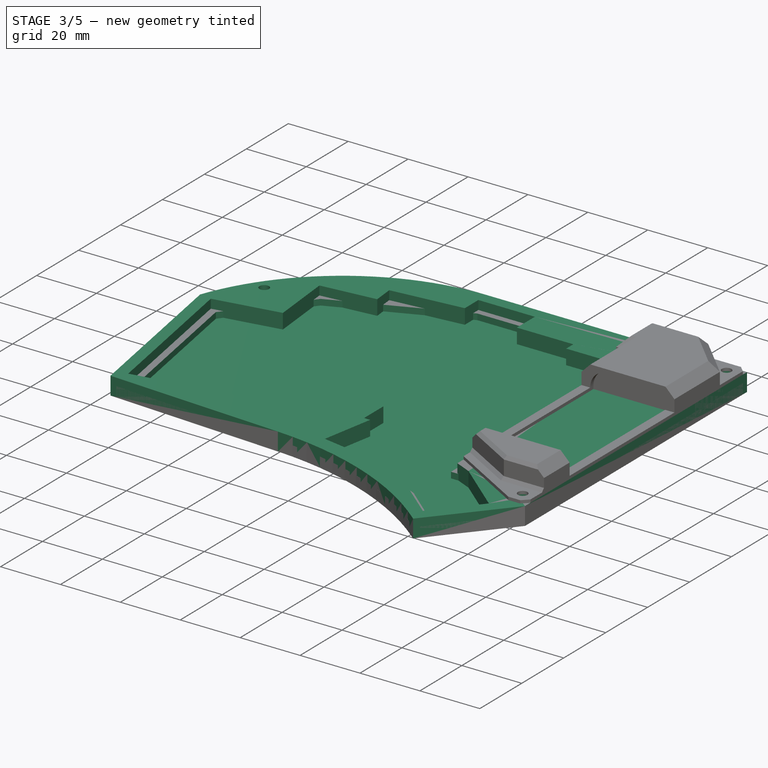
[diagram: stage 3 of 5 — iso view after this stage's code; geometry added in this stage tinted green]
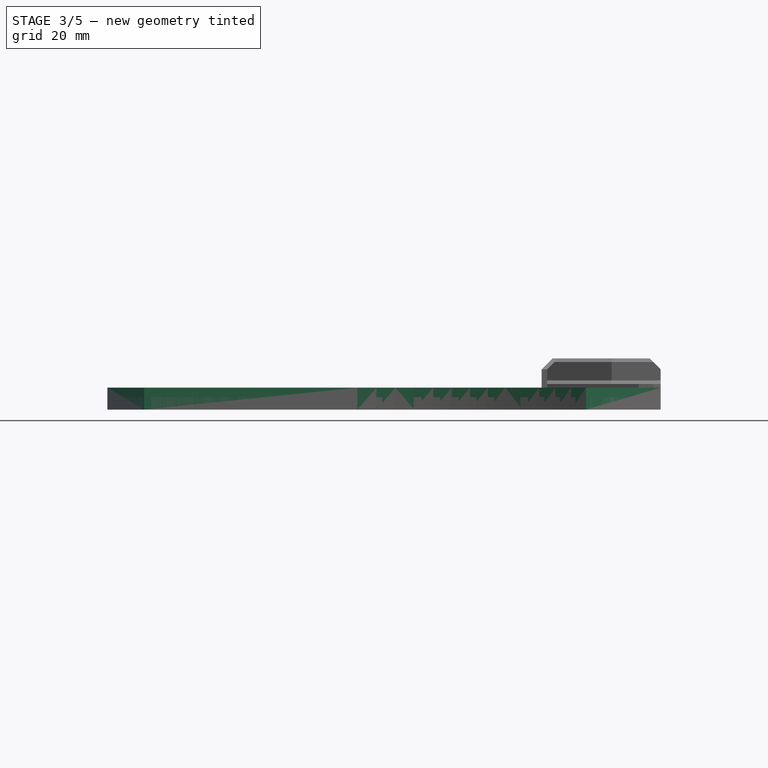
[diagram: stage 3 of 5 — front view after this stage's code; geometry added in this stage tinted green]
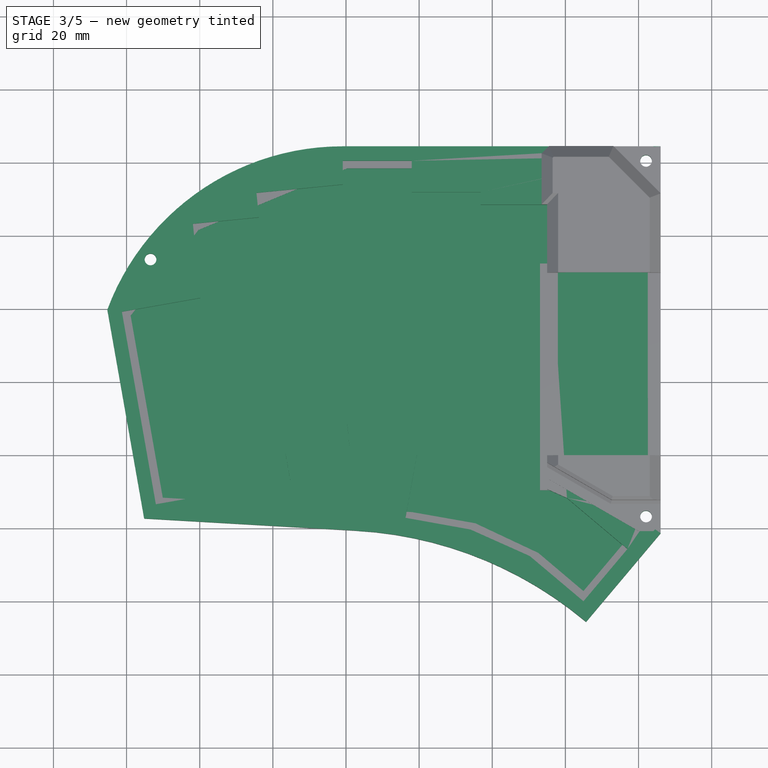
[diagram: stage 3 of 5 — top view after this stage's code; geometry added in this stage tinted green]
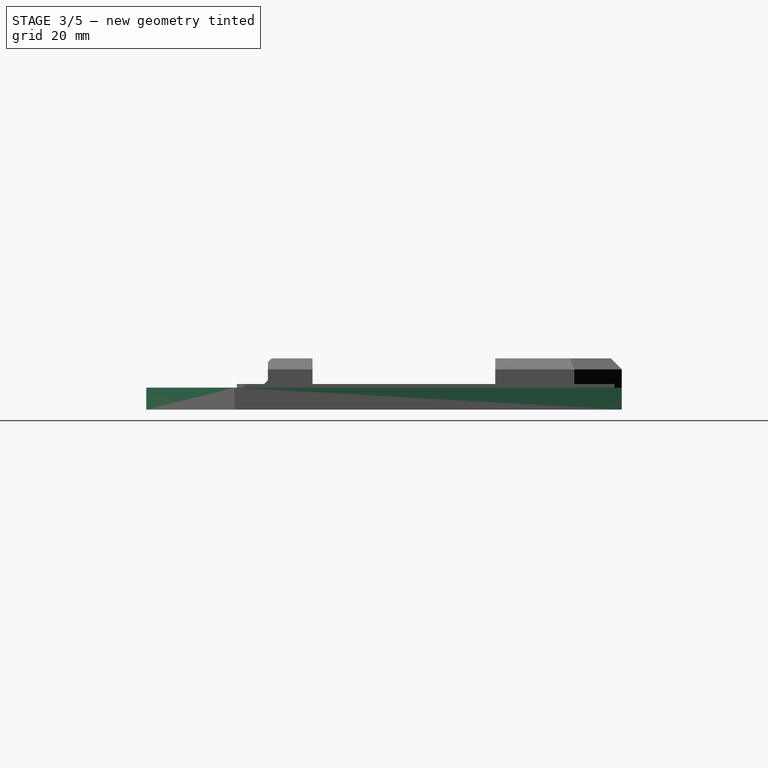
[diagram: stage 3 of 5 — right view after this stage's code; geometry added in this stage tinted green]
FEATURE [Sketcher::SketchObject] Sketch  label="edge_cuts"
  FullyConstrained = false
  sketch-geometry (14):
    g0: BSplineCurve PolesCount=2 KnotsCount=2 Degree=1 IsPeriodic=0
    g1: BSplineCurve PolesCount=2 KnotsCount=2 Degree=1 IsPeriodic=0
    g2: BSplineCurve PolesCount=2 KnotsCount=2 Degree=1 IsPeriodic=0
    g3: BSplineCurve PolesCount=2 KnotsCount=2 Degree=1 IsPeriodic=0
    g4: BSplineCurve PolesCount=2 KnotsCount=2 Degree=1 IsPeriodic=0
    g5: BSplineCurve PolesCount=2 KnotsCount=2 Degree=1 IsPeriodic=0
    g6: BSplineCurve PolesCount=2 KnotsCount=2 Degree=1 IsPeriodic=0
    g7: BSplineCurve PolesCount=2 KnotsCount=2 Degree=1 IsPeriodic=0
    g8: BSplineCurve PolesCount=2 KnotsCount=2 Degree=1 IsPeriodic=0
    g9: BSplineCurve PolesCount=2 KnotsCount=2 Degree=1 IsPeriodic=0
    g10: BSplineCurve PolesCount=2 KnotsCount=2 Degree=1 IsPeriodic=0
    g11: BSplineCurve PolesCount=2 KnotsCount=2 Degree=1 IsPeriodic=0
    g12: BSplineCurve PolesCount=2 KnotsCount=2 Degree=1 IsPeriodic=0
    g13: BSplineCurve PolesCount=2 KnotsCount=2 Degree=1 IsPeriodic=0
FEATURE [Sketcher::SketchObject] Sketch001  label="edge_cuts_proper"
  ExternalGeometry = -> [Sketch]
  FullyConstrained = true
  MapMode = 5
  Support = -> [XY_Plane]
  sketch-geometry (14):
    g0: LineSegment StartX=19.05 StartY=-17.5425 StartZ=0 EndX=60.05 EndY=-0.5425 EndZ=0
    g1: LineSegment StartX=60.05 StartY=-0.5425 StartZ=0 EndX=138.05 EndY=-0.5425 EndZ=0
    g2: LineSegment StartX=138.05 StartY=-0.5425 StartZ=0 EndX=138.05 EndY=-28.5425 EndZ=0
    g3: LineSegment StartX=138.05 StartY=-28.5425 StartZ=0 EndX=114.05 EndY=-28.5425 EndZ=0
    g4: LineSegment StartX=114.05 StartY=-28.5425 StartZ=0 EndX=114.05 EndY=-88.5425 EndZ=0
    g5: LineSegment StartX=114.05 StartY=-88.5425 StartZ=0 EndX=128.05 EndY=-88.5425 EndZ=0
    g6: LineSegment StartX=128.05 StartY=-88.5425 StartZ=0 EndX=141.05 EndY=-99.5425 EndZ=0
    g7: LineSegment StartX=141.05 StartY=-99.5425 StartZ=0 EndX=125.05 EndY=-118.543 EndZ=0
    g8: LineSegment StartX=125.05 StartY=-118.543 StartZ=0 EndX=112.05 EndY=-107.543 EndZ=0
    g9: LineSegment StartX=112.05 StartY=-107.543 StartZ=0 EndX=95.05 EndY=-99.5425 EndZ=0
    g10: LineSegment StartX=95.05 StartY=-99.5425 StartZ=0 EndX=78.05 EndY=-96.5425 EndZ=0
    g11: LineSegment StartX=78.05 StartY=-96.5425 StartZ=0 EndX=9.05 EndY=-92.5425 EndZ=0
    g12: LineSegment StartX=9.05 StartY=-92.5425 StartZ=0 EndX=0.05 EndY=-41.5425 EndZ=0
    g13: LineSegment StartX=0.05 StartY=-41.5425 StartZ=0 EndX=19.05 EndY=-17.5425 EndZ=0
  constraints (28):
    c: Coincident(g0,g-3)
    c: Coincident(g0,g-16)
    c: Coincident(g1,g0)
    c: Coincident(g1,g-15)
    c: Coincident(g2,g1)
    c: Coincident(g2,g-14)
    c: Coincident(g3,g2)
    c: Coincident(g3,g-13)
    c: Coincident(g4,g3)
    c: Coincident(g4,g-12)
    c: Coincident(g5,g4)
    c: Coincident(g5,g-11)
    c: Coincident(g6,g5)
    c: Coincident(g6,g-10)
    c: Coincident(g7,g6)
    c: Coincident(g7,g-9)
    c: Coincident(g8,g7)
    c: Coincident(g8,g-8)
    c: Coincident(g9,g8)
    c: Coincident(g9,g-7)
    c: Coincident(g10,g9)
    c: Coincident(g10,g-6)
    c: Coincident(g11,g10)
    c: Coincident(g11,g-5)
    c: Coincident(g12,g11)
    c: Coincident(g12,g-4)
    c: Coincident(g13,g12)
    c: Coincident(g13,g0)
FEATURE [Sketcher::SketchObject] Sketch002  label="edge_cuts_proper001"
  AttachmentOffset = pos=(-70.9,59.5,0) rot=(0,0,1;0rad)
  ExternalGeometry = -> [Sketch]
  FullyConstrained = false
  MapMode = 5
  Placement = pos=(-70.9,59.5,0) rot=(0,0,1;0rad)
  Support = -> [XY_Plane]
  sketch-geometry (51):
    g0: LineSegment StartX=89.95 StartY=-77.0425 StartZ=0 EndX=130.95 EndY=-60.0425 EndZ=0
    g1: LineSegment StartX=130.95 StartY=-60.0425 StartZ=0 EndX=208.95 EndY=-60.0425 EndZ=0
    g2: LineSegment StartX=208.95 StartY=-60.0425 StartZ=0 EndX=208.95 EndY=-88.0425 EndZ=0
    g3: LineSegment StartX=208.95 StartY=-88.0425 StartZ=0 EndX=184.95 EndY=-88.0425 EndZ=0
    g4: LineSegment StartX=184.95 StartY=-88.0425 StartZ=0 EndX=184.95 EndY=-148.043 EndZ=0
    g5: LineSegment StartX=184.95 StartY=-148.043 StartZ=0 EndX=198.95 EndY=-148.043 EndZ=0
    g6: LineSegment StartX=198.95 StartY=-148.043 StartZ=0 EndX=211.95 EndY=-159.043 EndZ=0
    g7: LineSegment StartX=211.95 StartY=-159.043 StartZ=0 EndX=195.95 EndY=-178.043 EndZ=0
    g8: LineSegment StartX=195.95 StartY=-178.043 StartZ=0 EndX=182.95 EndY=-167.043 EndZ=0
    g9: LineSegment StartX=182.95 StartY=-167.043 StartZ=0 EndX=165.95 EndY=-159.043 EndZ=0
    g10: LineSegment StartX=165.95 StartY=-159.043 StartZ=0 EndX=148.95 EndY=-156.043 EndZ=0
    g11: LineSegment StartX=148.95 StartY=-156.043 StartZ=0 EndX=79.95 EndY=-152.043 EndZ=0
    g12: LineSegment StartX=79.95 StartY=-152.043 StartZ=0 EndX=70.95 EndY=-101.042 EndZ=0
    g13: LineSegment StartX=70.95 StartY=-101.042 StartZ=0 EndX=89.95 EndY=-77.0425 EndZ=0
    g14: LineSegment StartX=65.6358 StartY=-99.6998 StartZ=0 EndX=75.7132 EndY=-156.805 EndZ=0
    g15: LineSegment StartX=75.7132 StartY=-156.805 StartZ=0 EndX=133.969 EndY=-160.182 EndZ=0
    g16: ArcOfCircle CenterX=127.792 CenterY=-266.743 CenterZ=0 NormalX=0 NormalY=0 NormalZ=1 AngleXU=0 Radius=106.74 StartAngle=0.870903 EndAngle=1.51289
    g17: LineSegment StartX=196.546 StartY=-185.097 StartZ=0 EndX=216.95 EndY=-160.867 EndZ=0
    g18: LineSegment StartX=216.95 StartY=-160.867 StartZ=0 EndX=216.95 EndY=-55.0425 EndZ=0
    g19: LineSegment StartX=216.95 StartY=-55.0425 StartZ=0 EndX=129.955 EndY=-55.0425 EndZ=0
    g20: ArcOfCircle CenterX=129.955 CenterY=-123.689 CenterZ=0 NormalX=0 NormalY=0 NormalZ=1 AngleXU=0 Radius=68.6469 StartAngle=1.5708 EndAngle=2.78459
    g21: LineSegment StartX=69.611 StartY=-100.281 StartZ=0 EndX=91.0371 EndY=-96.4999 EndZ=0
    g22: LineSegment StartX=91.0371 StartY=-96.4999 StartZ=0 EndX=89.0339 EndY=-76.2298 EndZ=0
    g23: LineSegment StartX=89.0339 StartY=-76.2298 StartZ=0 EndX=107.08 EndY=-74.4464 EndZ=0
    g24: LineSegment StartX=107.08 StartY=-74.4464 StartZ=0 EndX=106.422 EndY=-67.7831 EndZ=0
    g25: LineSegment StartX=106.422 StartY=-67.7831 StartZ=0 EndX=130.029 EndY=-65.4501 EndZ=0
    g26: LineSegment StartX=130.029 StartY=-65.4501 StartZ=0 EndX=130.029 EndY=-59.0043 EndZ=0
    g27: LineSegment StartX=130.029 StartY=-59.0043 StartZ=0 EndX=148.896 EndY=-59.0043 EndZ=0
    g28: LineSegment StartX=148.896 StartY=-59.0043 StartZ=0 EndX=148.896 EndY=-67.5718 EndZ=0
    g29: LineSegment StartX=148.896 StartY=-67.5718 StartZ=0 EndX=167.734 EndY=-67.5718 EndZ=0
    g30: LineSegment StartX=167.734 StartY=-67.5718 StartZ=0 EndX=167.734 EndY=-70.9727 EndZ=0
    g31: LineSegment StartX=167.734 StartY=-70.9727 StartZ=0 EndX=185.897 EndY=-70.9727 EndZ=0
    g32: LineSegment StartX=207.88 StartY=-165.163 StartZ=0 EndX=195.836 EndY=-179.466 EndZ=0
    g33: LineSegment StartX=195.836 StartY=-179.466 StartZ=0 EndX=181.136 EndY=-167.088 EndZ=0
    g34: LineSegment StartX=181.136 StartY=-167.088 StartZ=0 EndX=164.949 EndY=-159.851 EndZ=0
    g35: LineSegment StartX=164.949 StartY=-159.851 StartZ=0 EndX=147.17 EndY=-156.643 EndZ=0
    g36: LineSegment StartX=148.222 StartY=-130.272 StartZ=0 EndX=131.181 EndY=-130.272 EndZ=0
    g37: LineSegment StartX=131.181 StartY=-130.272 StartZ=0 EndX=131.833 EndY=-136.99 EndZ=0
    g38: LineSegment StartX=131.833 StartY=-136.99 StartZ=0 EndX=114.397 EndY=-139.23 EndZ=0
    g39: LineSegment StartX=114.397 StartY=-139.23 StartZ=0 EndX=115.671 EndY=-146.454 EndZ=0
    g40: LineSegment StartX=115.671 StartY=-146.454 StartZ=0 EndX=78.9041 EndY=-152.942 EndZ=0
    g41: LineSegment StartX=78.9041 StartY=-152.942 StartZ=0 EndX=69.611 EndY=-100.281 EndZ=0
    g42: LineSegment StartX=148.222 StartY=-130.272 StartZ=0 EndX=148.222 EndY=-139.475 EndZ=0
    g43: LineSegment StartX=148.222 StartY=-139.475 StartZ=0 EndX=150.268 EndY=-139.475 EndZ=0
    g44: LineSegment StartX=150.268 StartY=-139.475 StartZ=0 EndX=147.17 EndY=-156.643 EndZ=0
    g45: LineSegment StartX=185.897 StartY=-70.9727 StartZ=0 EndX=185.897 EndY=-148.794 EndZ=0
    g46: LineSegment StartX=185.897 StartY=-148.794 StartZ=0 EndX=191.32 EndY=-151.218 EndZ=0
    g47: LineSegment StartX=191.32 StartY=-151.218 StartZ=0 EndX=207.88 EndY=-165.163 EndZ=0
    g48: Circle CenterX=212.95 CenterY=-59.0425 CenterZ=0 NormalX=0 NormalY=0 NormalZ=1 AngleXU=0 Radius=1.6
    g49: Circle CenterX=212.95 CenterY=-156.303 CenterZ=0 NormalX=0 NormalY=0 NormalZ=1 AngleXU=0 Radius=1.6
    g50: Circle CenterX=77.4441 CenterY=-85.9816 CenterZ=0 NormalX=0 NormalY=0 NormalZ=1 AngleXU=0 Radius=1.6
  constraints (110):
    c: Coincident(g0,g-3)
    c: Coincident(g0,g-16)
    c: Coincident(g1,g0)
    c: Coincident(g1,g-15)
    c: Coincident(g2,g1)
    c: Coincident(g2,g-14)
    c: Coincident(g3,g2)
    c: Coincident(g3,g-13)
    c: Coincident(g4,g3)
    c: Coincident(g4,g-12)
    c: Coincident(g5,g4)
    c: Coincident(g5,g-11)
    c: Coincident(g6,g5)
    c: Coincident(g6,g-10)
    c: Coincident(g7,g6)
    c: Coincident(g7,g-9)
    c: Coincident(g8,g7)
    c: Coincident(g8,g-8)
    c: Coincident(g9,g8)
    c: Coincident(g9,g-7)
    c: Coincident(g10,g9)
    c: Coincident(g10,g-6)
    c: Coincident(g11,g10)
    c: Coincident(g11,g-5)
    c: Coincident(g12,g11)
    c: Coincident(g12,g-4)
    c: Coincident(g13,g12)
    c: Coincident(g13,g0)
    c: Coincident(g15,g14)
    c: Tangent(g16,g15) = 1.5708
    c: Coincident(g17,g16)
    c: Parallel(g17,g7)
    c: Parallel(g11,g15)
    c: Parallel(g14,g12)
    c: Perpendicular(g16,g17)
    c: Coincident(g18,g17)
    c: Vertical(g18)
    c: Coincident(g19,g18)
    c: Horizontal(g19)
    c: Coincident(g20,g14)
    c: Tangent(g20,g19) = -1.5708
    c: Distance(g12,g14) = 5
    c: Distance(g1,g19) = 5
    c: Distance(g6,g17) = 5
    c: Distance(g11,g15) = 5
    c: Distance(g16,g8) = 5
    c: Distance(g6,g18) = 5
    c: Distance(g14,g13) = 5
    c: Distance(g19,g0) = 5
    c: Coincident(g22,g21)
    c: Coincident(g23,g22)
    c: Coincident(g24,g23)
    c: Coincident(g25,g24)
    c: Coincident(g26,g25)
    c: Vertical(g26)
    c: Coincident(g27,g26)
    c: Horizontal(g27)
    c: Coincident(g28,g27)
    c: Vertical(g28)
    c: Coincident(g29,g28)
    c: Horizontal(g29)
    c: Coincident(g30,g29)
    c: Vertical(g30)
    c: Coincident(g31,g30)
    c: Horizontal(g31)
    c: Coincident(g33,g32)
    c: Coincident(g34,g33)
    c: Coincident(g35,g34)
    c: Horizontal(g36)
    c: Coincident(g37,g36)
    c: Coincident(g38,g37)
    c: Coincident(g39,g38)
    c: Coincident(g40,g39)
    c: Coincident(g41,g40)
    c: Coincident(g41,g21)
    c: Coincident(g42,g36)
    c: Coincident(g43,g42)
    c: Horizontal(g43)
    c: Coincident(g44,g43)
    c: Coincident(g44,g35)
    c: Vertical(g42)
    c: Perpendicular(g40,g39)
    c: Perpendicular(g41,g40)
    c: Perpendicular(g21,g41)
    c: Perpendicular(g23,g22)
    c: Perpendicular(g24,g23)
    c: Perpendicular(g25,g24)
    c: Perpendicular(g32,g33)
    c: Parallel(g7,g32)
    c: Parallel(g41,g12)
    c: Perpendicular(g35,g44)
    c: Coincident(g45,g31)
    c: Vertical(g45)
    c: Coincident(g46,g45)
    c: Coincident(g47,g46)
    c: Coincident(g47,g32)
    c: Perpendicular(g32,g47)
    c: Parallel(g46,g34)
    c: DistanceX(g1,g18) = 8
    c: Radius(g48) = 1.6
    c: Equal(g48,g49)
    c: Vertical(g49,g48)
    c: DistanceX(g48,g18) = 4
    c: DistanceY(g48,g18) = 4
    c: Distance(g49,g17) = 6
    c: Equal(g48,g50)
    c: DistanceY(g49,g48) = 97.26
    c: Radius(g20) = 68.6469
    c: Distance(g50,g20) = 64.6469
    c: Radius(g16) = 106.74
FEATURE [Image::ImagePlane] ImagePlane
  Placement = pos=(70.53,-59.27,0) rot=(0,0,1;0rad)
  XSize = 141.043
  YSize = 118.55
FEATURE [PartDesign::Pad] Pad
  Direction = (0,0,1)
  Length = 6
  Length2 = 10
  Profile = -> Sketch002
  ReferenceAxis = -> Sketch002 [N_Axis]
  Type = 0
FEATURE [Sketcher::SketchObject] Sketch011  label="edge_cuts_proper005"
  AttachmentOffset = pos=(-70.9,59.5,3) rot=(0,0,1;0rad)
  ExternalGeometry = -> [Sketch]
  FullyConstrained = false
  MapMode = 5
  Placement = pos=(-70.9,59.5,3) rot=(0,0,1;0rad)
  Support = -> [XY_Plane001]
  sketch-geometry (52):
    g0: LineSegment StartX=89.95 StartY=-77.0425 StartZ=0 EndX=130.95 EndY=-60.0425 EndZ=0
    g1: LineSegment StartX=130.95 StartY=-60.0425 StartZ=0 EndX=208.95 EndY=-60.0425 EndZ=0
    g2: LineSegment StartX=208.95 StartY=-60.0425 StartZ=0 EndX=208.95 EndY=-88.0425 EndZ=0
    g3: LineSegment StartX=208.95 StartY=-88.0425 StartZ=0 EndX=184.95 EndY=-88.0425 EndZ=0
    g4: LineSegment StartX=184.95 StartY=-88.0425 StartZ=0 EndX=184.95 EndY=-148.043 EndZ=0
    g5: LineSegment StartX=184.95 StartY=-148.043 StartZ=0 EndX=198.95 EndY=-148.043 EndZ=0
    g6: LineSegment StartX=198.95 StartY=-148.043 StartZ=0 EndX=211.95 EndY=-159.043 EndZ=0
    g7: LineSegment StartX=211.95 StartY=-159.043 StartZ=0 EndX=195.95 EndY=-178.043 EndZ=0
    g8: LineSegment StartX=195.95 StartY=-178.043 StartZ=0 EndX=182.95 EndY=-167.043 EndZ=0
    g9: LineSegment StartX=182.95 StartY=-167.043 StartZ=0 EndX=165.95 EndY=-159.043 EndZ=0
    g10: LineSegment StartX=165.95 StartY=-159.043 StartZ=0 EndX=148.95 EndY=-156.043 EndZ=0
    g11: LineSegment StartX=148.95 StartY=-156.043 StartZ=0 EndX=79.95 EndY=-152.043 EndZ=0
    g12: LineSegment StartX=79.95 StartY=-152.043 StartZ=0 EndX=70.95 EndY=-101.042 EndZ=0
    g13: LineSegment StartX=70.95 StartY=-101.042 StartZ=0 EndX=89.95 EndY=-77.0425 EndZ=0
    g14: ArcOfCircle CenterX=129.955 CenterY=-123.689 CenterZ=0 NormalX=0 NormalY=0 NormalZ=1 AngleXU=0 Radius=68.6469 StartAngle=1.5708 EndAngle=2.78459
    g15: Circle CenterX=212.95 CenterY=-59.0425 CenterZ=0 NormalX=0 NormalY=0 NormalZ=1 AngleXU=0 Radius=1.6
    g16: Circle CenterX=212.95 CenterY=-156.303 CenterZ=0 NormalX=0 NormalY=0 NormalZ=1 AngleXU=0 Radius=1.6
    g17: Circle CenterX=77.4441 CenterY=-85.9816 CenterZ=0 NormalX=0 NormalY=0 NormalZ=1 AngleXU=0 Radius=1.6
    g18: LineSegment StartX=65.6358 StartY=-99.6998 StartZ=0 EndX=75.3657 EndY=-154.836 EndZ=0
    g19: LineSegment StartX=75.3657 StartY=-154.836 StartZ=0 EndX=75.7132 EndY=-156.805 EndZ=0
    g20: LineSegment StartX=75.7132 StartY=-156.805 StartZ=0 EndX=77.7099 EndY=-156.921 EndZ=0
    g21: LineSegment StartX=77.7099 StartY=-156.921 StartZ=0 EndX=133.969 EndY=-160.182 EndZ=0
    g22: ArcOfCircle CenterX=127.792 CenterY=-266.743 CenterZ=0 NormalX=0 NormalY=0 NormalZ=1 AngleXU=0 Radius=106.74 StartAngle=0.870903 EndAngle=0.889641
    g23: ArcOfCircle CenterX=127.792 CenterY=-266.743 CenterZ=0 NormalX=0 NormalY=0 NormalZ=1 AngleXU=0 Radius=106.74 StartAngle=0.889641 EndAngle=1.51289
    g24: LineSegment StartX=196.546 StartY=-185.097 StartZ=0 EndX=197.835 EndY=-183.567 EndZ=0
    g25: LineSegment StartX=197.835 StartY=-183.567 StartZ=0 EndX=216.95 EndY=-160.867 EndZ=0
    g26: LineSegment StartX=216.95 StartY=-160.867 StartZ=0 EndX=216.95 EndY=-57.0425 EndZ=0
    g27: LineSegment StartX=216.95 StartY=-57.0425 StartZ=0 EndX=216.95 EndY=-55.0425 EndZ=0
    g28: LineSegment StartX=216.95 StartY=-55.0425 StartZ=0 EndX=214.95 EndY=-55.0425 EndZ=0
    g29: LineSegment StartX=214.95 StartY=-55.0425 StartZ=0 EndX=129.955 EndY=-55.0425 EndZ=0
    g30: LineSegment StartX=214.95 StartY=-55.0425 StartZ=0 EndX=216.95 EndY=-57.0425 EndZ=0
    g31: LineSegment StartX=195.004 StartY=-183.823 StartZ=0 EndX=197.835 EndY=-183.567 EndZ=0
    g32: LineSegment StartX=75.3657 StartY=-154.836 StartZ=0 EndX=77.7099 EndY=-156.921 EndZ=0
    g33: LineSegment StartX=72.0128 StartY=-101.311 StartZ=0 EndX=90.5729 EndY=-77.8668 EndZ=0
    g34: LineSegment StartX=90.5729 StartY=-77.8668 StartZ=0 EndX=131.149 EndY=-61.0425 EndZ=0
    g35: LineSegment StartX=131.149 StartY=-61.0425 StartZ=0 EndX=207.95 EndY=-61.0425 EndZ=0
    g36: LineSegment StartX=207.95 StartY=-61.0425 StartZ=0 EndX=207.95 EndY=-87.0425 EndZ=0
    g37: LineSegment StartX=183.95 StartY=-87.0425 StartZ=0 EndX=183.95 EndY=-149.043 EndZ=0
    g38: LineSegment StartX=210.542 StartY=-159.161 StartZ=0 EndX=195.831 EndY=-176.632 EndZ=0
    g39: LineSegment StartX=195.831 StartY=-176.632 StartZ=0 EndX=183.495 EndY=-166.194 EndZ=0
    g40: LineSegment StartX=183.495 StartY=-166.194 StartZ=0 EndX=166.255 EndY=-158.081 EndZ=0
    g41: LineSegment StartX=166.255 StartY=-158.081 StartZ=0 EndX=149.066 EndY=-155.048 EndZ=0
    g42: LineSegment StartX=149.066 StartY=-155.048 StartZ=0 EndX=80.7974 EndY=-151.09 EndZ=0
    g43: LineSegment StartX=80.7974 StartY=-151.09 StartZ=0 EndX=72.0128 EndY=-101.311 EndZ=0
    g44: LineSegment StartX=198.584 StartY=-149.043 StartZ=0 EndX=207.95 EndY=-156.968 EndZ=0
    g45: LineSegment StartX=207.95 StartY=-156.968 StartZ=0 EndX=210.542 EndY=-159.161 EndZ=0
    g46: LineSegment StartX=207.95 StartY=-156.968 StartZ=0 EndX=207.95 EndY=-87.0425 EndZ=0
    g47: LineSegment StartX=190.95 StartY=-87.0425 StartZ=0 EndX=190.95 EndY=-149.043 EndZ=0
    g48: LineSegment StartX=207.95 StartY=-87.0425 StartZ=0 EndX=190.95 EndY=-87.0425 EndZ=0
    g49: LineSegment StartX=190.95 StartY=-87.0425 StartZ=0 EndX=183.95 EndY=-87.0425 EndZ=0
    g50: LineSegment StartX=183.95 StartY=-149.043 StartZ=0 EndX=190.95 EndY=-149.043 EndZ=0
    g51: LineSegment StartX=190.95 StartY=-149.043 StartZ=0 EndX=198.584 EndY=-149.043 EndZ=0
  constraints (141):
    c: Coincident(g0,g-3)
    c: Coincident(g0,g-16)
    c: Coincident(g1,g0)
    c: Coincident(g1,g-15)
    c: Coincident(g2,g1)
    c: Coincident(g2,g-14)
    c: Coincident(g3,g2)
    c: Coincident(g3,g-13)
    c: Coincident(g4,g3)
    c: Coincident(g4,g-12)
    c: Coincident(g5,g4)
    c: Coincident(g5,g-11)
    c: Coincident(g6,g5)
    c: Coincident(g6,g-10)
    c: Coincident(g7,g6)
    c: Coincident(g7,g-9)
    c: Coincident(g8,g7)
    c: Coincident(g8,g-8)
    c: Coincident(g9,g8)
    c: Coincident(g9,g-7)
    c: Coincident(g10,g9)
    c: Coincident(g10,g-6)
    c: Coincident(g11,g10)
    c: Coincident(g11,g-5)
    c: Coincident(g12,g11)
    c: Coincident(g12,g-4)
    c: Coincident(g13,g12)
    c: Coincident(g13,g0)
    c: Coincident(g20,g19)
    c: Tangent(g23,g21) = 1.5708
    c: Coincident(g24,g22)
    c: Coincident(g26,g25)
    c: Coincident(g28,g27)
    c: Coincident(g14,g18)
    c: Tangent(g14,g29) = -1.5708
    c: Distance(g22,g8) = 5
    c: Distance(g18,g13) = 5
    c: Distance(g29,g0) = 5
    c: DistanceX(g1,g27) = 8
    c: Radius(g15) = 1.6
    c: Equal(g15,g16)
    c: Vertical(g16,g15)
    c: DistanceX(g15,g27) = 4
    c: DistanceY(g15,g27) = 4
    c: Equal(g15,g17)
    c: DistanceY(g16,g15) = 97.26
    c: Radius(g14) = 68.6469
    c: Distance(g17,g14) = 64.6469
    c: Coincident(g18,g19)
    c: Parallel(g18,g12)
    c: Parallel(g19,g12)
    c: Distance(g12,g18) = 5
    c: Coincident(g20,g21)
    c: Parallel(g11,g20)
    c: Parallel(g11,g21)
    c: Distance(g11,g21) = 5
    c: Coincident(g22,g23)
    c: Coincident(g22,g23)
    c: Radius(g22) = 106.74
    c: Radius(g23) = 106.74
    c: Coincident(g24,g25)
    c: Parallel(g24,g7)
    c: Parallel(g25,g7)
    c: Distance(g6,g25) = 5
    c: Distance(g16,g25) = 6
    c: Perpendicular(g22,g24)
    c: Coincident(g26,g27)
    c: Vertical(g26)
    c: Vertical(g27)
    c: Distance(g6,g26) = 5
    c: Coincident(g28,g29)
    c: Horizontal(g28)
    c: Horizontal(g29)
    c: Distance(g1,g29) = 5
    c: Coincident(g30,g28)
    c: Coincident(g30,g26)
    c: DistanceX(g29,g27) = 2
    c: DistanceY(g26,g27) = 2
    c: Coincident(g31,g22)
    c: Coincident(g31,g24)
    c: Distance(g22,g22) = 2
    c: Distance(g24,g22) = 2
    c: Distance(g20,g19) = 2
    c: Distance(g18,g19) = 2
    c: Coincident(g32,g18)
    c: Coincident(g32,g20)
    c: Coincident(g34,g33)
    c: Coincident(g35,g34)
    c: Horizontal(g35)
    c: Coincident(g36,g35)
    c: Vertical(g36)
    c: Coincident(g48,g36)
    c: Coincident(g37,g49)
    c: Vertical(g37)
    c: Coincident(g50,g37)
    c: Coincident(g44,g51)
    c: Coincident(g38,g45)
    c: Coincident(g39,g38)
    c: Coincident(g40,g39)
    c: Coincident(g41,g40)
    c: Coincident(g42,g41)
    c: Coincident(g43,g42)
    c: Coincident(g43,g33)
    c: Parallel(g12,g43)
    c: Parallel(g13,g33)
    c: Parallel(g0,g34)
    c: Parallel(g7,g38)
    c: Parallel(g8,g39)
    c: Parallel(g9,g40)
    c: Parallel(g10,g41)
    c: Parallel(g11,g42)
    c: Distance(g42,g11) = 1
    c: Distance(g42,g12) = 1
    c: Distance(g0,g33) = 1
    c: Distance(g33,g0) = 1
    c: Distance(g35,g1) = 1
    c: Distance(g35,g2) = 1
    c: Distance(g3,g37) = 1
    c: Distance(g51,g5) = 1
    c: Distance(g51,g6) = 1
    c: Distance(g38,g7) = 1
    c: Distance(g38,g8) = 1
    c: Distance(g9,g40) = 1
    c: Distance(g9,g41) = 1
    c: Coincident(g44,g45)
    c: Parallel(g6,g44)
    c: Parallel(g6,g45)
    c: Coincident(g46,g44)
    c: Coincident(g46,g36)
    c: Vertical(g46)
    c: Vertical(g47)
    c: DistanceX(g3,g47) = 6
    c: Coincident(g48,g49)
    c: Horizontal(g48)
    c: Horizontal(g49)
    c: Distance(g3,g49) = 1
    c: Coincident(g48,g47)
    c: Coincident(g50,g51)
    c: Horizontal(g50)
    c: Horizontal(g51)
    c: Coincident(g50,g47)
FEATURE [PartDesign::Pocket] Pocket007
  BaseFeature = -> Pocket006
  Direction = (0,0,-1)
  Length = 2
  Length2 = 5
  Profile = -> Sketch011
  ReferenceAxis = -> Sketch011 [N_Axis]
  Type = 0
FEATURE [Sketcher::SketchObject] Sketch012  label="edge_cuts_proper006"
  AttachmentOffset = pos=(-70.9,59.5,0) rot=(0,0,1;0rad)
  ExternalGeometry = -> [Sketch]
  FullyConstrained = false
  MapMode = 5
  Placement = pos=(-70.9,59.5,0) rot=(0,0,1;0rad)
  Support = -> [XY_Plane001]
  sketch-geometry (48):
    g0: LineSegment StartX=89.95 StartY=-77.0425 StartZ=0 EndX=130.95 EndY=-60.0425 EndZ=0
    g1: LineSegment StartX=130.95 StartY=-60.0425 StartZ=0 EndX=208.95 EndY=-60.0425 EndZ=0
    g2: LineSegment StartX=208.95 StartY=-60.0425 StartZ=0 EndX=208.95 EndY=-88.0425 EndZ=0
    g3: LineSegment StartX=208.95 StartY=-88.0425 StartZ=0 EndX=184.95 EndY=-88.0425 EndZ=0
    g4: LineSegment StartX=184.95 StartY=-88.0425 StartZ=0 EndX=184.95 EndY=-148.043 EndZ=0
    g5: LineSegment StartX=184.95 StartY=-148.043 StartZ=0 EndX=198.95 EndY=-148.043 EndZ=0
    g6: LineSegment StartX=198.95 StartY=-148.043 StartZ=0 EndX=211.95 EndY=-159.043 EndZ=0
    g7: LineSegment StartX=211.95 StartY=-159.043 StartZ=0 EndX=195.95 EndY=-178.043 EndZ=0
    g8: LineSegment StartX=195.95 StartY=-178.043 StartZ=0 EndX=182.95 EndY=-167.043 EndZ=0
    g9: LineSegment StartX=182.95 StartY=-167.043 StartZ=0 EndX=165.95 EndY=-159.043 EndZ=0
    g10: LineSegment StartX=165.95 StartY=-159.043 StartZ=0 EndX=148.95 EndY=-156.043 EndZ=0
    g11: LineSegment StartX=148.95 StartY=-156.043 StartZ=0 EndX=79.95 EndY=-152.043 EndZ=0
    g12: LineSegment StartX=79.95 StartY=-152.043 StartZ=0 EndX=70.95 EndY=-101.042 EndZ=0
    g13: LineSegment StartX=70.95 StartY=-101.042 StartZ=0 EndX=89.95 EndY=-77.0425 EndZ=0
    g14: ArcOfCircle CenterX=129.955 CenterY=-123.689 CenterZ=0 NormalX=0 NormalY=0 NormalZ=1 AngleXU=0 Radius=68.6469 StartAngle=1.5708 EndAngle=2.78459
    g15: Circle CenterX=212.95 CenterY=-59.0425 CenterZ=0 NormalX=0 NormalY=0 NormalZ=1 AngleXU=0 Radius=1.6
    g16: Circle CenterX=212.95 CenterY=-156.303 CenterZ=0 NormalX=0 NormalY=0 NormalZ=1 AngleXU=0 Radius=1.6
    g17: Circle CenterX=77.4447 CenterY=-85.9807 CenterZ=0 NormalX=0 NormalY=0 NormalZ=1 AngleXU=0 Radius=1.6
    g18: LineSegment StartX=65.6358 StartY=-99.6998 StartZ=0 EndX=75.3657 EndY=-154.836 EndZ=0
    g19: LineSegment StartX=75.3657 StartY=-154.836 StartZ=0 EndX=75.7132 EndY=-156.805 EndZ=0
    g20: LineSegment StartX=75.7132 StartY=-156.805 StartZ=0 EndX=77.7099 EndY=-156.921 EndZ=0
    g21: LineSegment StartX=77.7099 StartY=-156.921 StartZ=0 EndX=133.969 EndY=-160.182 EndZ=0
    g22: ArcOfCircle CenterX=127.792 CenterY=-266.743 CenterZ=0 NormalX=0 NormalY=0 NormalZ=1 AngleXU=0 Radius=106.74 StartAngle=0.870903 EndAngle=0.889641
    g23: ArcOfCircle CenterX=127.792 CenterY=-266.743 CenterZ=0 NormalX=0 NormalY=0 NormalZ=1 AngleXU=0 Radius=106.74 StartAngle=0.889641 EndAngle=1.51289
    g24: LineSegment StartX=196.546 StartY=-185.097 StartZ=0 EndX=197.835 EndY=-183.567 EndZ=0
    g25: LineSegment StartX=197.835 StartY=-183.567 StartZ=0 EndX=216.95 EndY=-160.867 EndZ=0
    g26: LineSegment StartX=216.95 StartY=-160.867 StartZ=0 EndX=216.95 EndY=-57.0425 EndZ=0
    g27: LineSegment StartX=216.95 StartY=-57.0425 StartZ=0 EndX=216.95 EndY=-55.0425 EndZ=0
    g28: LineSegment StartX=216.95 StartY=-55.0425 StartZ=0 EndX=214.95 EndY=-55.0425 EndZ=0
    g29: LineSegment StartX=214.95 StartY=-55.0425 StartZ=0 EndX=129.955 EndY=-55.0425 EndZ=0
    g30: LineSegment StartX=214.95 StartY=-55.0425 StartZ=0 EndX=216.95 EndY=-57.0425 EndZ=0
    g31: LineSegment StartX=195.004 StartY=-183.823 StartZ=0 EndX=197.835 EndY=-183.567 EndZ=0
    g32: LineSegment StartX=75.3657 StartY=-154.836 StartZ=0 EndX=77.7099 EndY=-156.921 EndZ=0
    g33: LineSegment StartX=81.377 StartY=-85.5148 StartZ=0 EndX=76.9788 EndY=-82.0484 EndZ=0
    g34: LineSegment StartX=76.9788 StartY=-82.0484 StartZ=0 EndX=73.5124 EndY=-86.4467 EndZ=0
    g35: LineSegment StartX=73.5124 StartY=-86.4467 StartZ=0 EndX=77.9106 EndY=-89.913 EndZ=0
    g36: LineSegment StartX=77.9106 StartY=-89.913 StartZ=0 EndX=81.377 EndY=-85.5148 EndZ=0
    g37: Circle CenterX=77.4447 CenterY=-85.9807 CenterZ=0 NormalX=0 NormalY=0 NormalZ=1 AngleXU=0 Radius=3.9598
    g38: LineSegment StartX=215.75 StartY=-56.2425 StartZ=0 EndX=210.15 EndY=-56.2425 EndZ=0
    g39: LineSegment StartX=210.15 StartY=-56.2425 StartZ=0 EndX=210.15 EndY=-61.8425 EndZ=0
    g40: LineSegment StartX=210.15 StartY=-61.8425 StartZ=0 EndX=215.75 EndY=-61.8425 EndZ=0
    g41: LineSegment StartX=215.75 StartY=-61.8425 StartZ=0 EndX=215.75 EndY=-56.2425 EndZ=0
    g42: Circle CenterX=212.95 CenterY=-59.0425 CenterZ=0 NormalX=0 NormalY=0 NormalZ=1 AngleXU=0 Radius=3.9598
    g43: LineSegment StartX=215.75 StartY=-153.503 StartZ=0 EndX=210.15 EndY=-153.503 EndZ=0
    g44: LineSegment StartX=210.15 StartY=-153.503 StartZ=0 EndX=210.15 EndY=-159.103 EndZ=0
    g45: LineSegment StartX=210.15 StartY=-159.103 StartZ=0 EndX=215.75 EndY=-159.103 EndZ=0
    g46: LineSegment StartX=215.75 StartY=-159.103 StartZ=0 EndX=215.75 EndY=-153.503 EndZ=0
    g47: Circle CenterX=212.95 CenterY=-156.303 CenterZ=0 NormalX=0 NormalY=0 NormalZ=1 AngleXU=0 Radius=3.9598
  constraints (127):
    c: Coincident(g0,g-3)
    c: Coincident(g0,g-16)
    c: Coincident(g1,g0)
    c: Coincident(g1,g-15)
    c: Coincident(g2,g1)
    c: Coincident(g2,g-14)
    c: Coincident(g3,g2)
    c: Coincident(g3,g-13)
    c: Coincident(g4,g3)
    c: Coincident(g4,g-12)
    c: Coincident(g5,g4)
    c: Coincident(g5,g-11)
    c: Coincident(g6,g5)
    c: Coincident(g6,g-10)
    c: Coincident(g7,g6)
    c: Coincident(g7,g-9)
    c: Coincident(g8,g7)
    c: Coincident(g8,g-8)
    c: Coincident(g9,g8)
    c: Coincident(g9,g-7)
    c: Coincident(g10,g9)
    c: Coincident(g10,g-6)
    c: Coincident(g11,g10)
    c: Coincident(g11,g-5)
    c: Coincident(g12,g11)
    c: Coincident(g12,g-4)
    c: Coincident(g13,g12)
    c: Coincident(g13,g0)
    c: Coincident(g20,g19)
    c: Tangent(g23,g21) = 1.5708
    c: Coincident(g24,g22)
    c: Coincident(g26,g25)
    c: Coincident(g28,g27)
    c: Coincident(g14,g18)
    c: Tangent(g14,g29) = -1.5708
    c: Distance(g22,g8) = 5
    c: Distance(g18,g13) = 5
    c: Distance(g29,g0) = 5
    c: DistanceX(g1,g27) = 8
    c: Radius(g15) = 1.6
    c: Equal(g15,g16)
    c: Vertical(g16,g15)
    c: DistanceX(g15,g27) = 4
    c: DistanceY(g15,g27) = 4
    c: Equal(g15,g17)
    c: DistanceY(g16,g15) = 97.26
    c: Radius(g14) = 68.6469
    c: Distance(g17,g14) = 64.6469
    c: Coincident(g18,g19)
    c: Parallel(g18,g12)
    c: Parallel(g19,g12)
    c: Distance(g12,g18) = 5
    c: Coincident(g20,g21)
    c: Parallel(g11,g20)
    c: Parallel(g11,g21)
    c: Distance(g11,g21) = 5
    c: Coincident(g22,g23)
    c: Coincident(g22,g23)
    c: Radius(g22) = 106.74
    c: Radius(g23) = 106.74
    c: Coincident(g24,g25)
    c: Parallel(g24,g7)
    c: Parallel(g25,g7)
    c: Distance(g6,g25) = 5
    c: Distance(g16,g25) = 6
    c: Perpendicular(g22,g24)
    c: Coincident(g26,g27)
    c: Vertical(g26)
    c: Vertical(g27)
    c: Distance(g6,g26) = 5
    c: Coincident(g28,g29)
    c: Horizontal(g28)
    c: Horizontal(g29)
    c: Distance(g1,g29) = 5
    c: Coincident(g30,g28)
    c: Coincident(g30,g26)
    c: DistanceX(g29,g27) = 2
    c: DistanceY(g26,g27) = 2
    c: Coincident(g31,g22)
    c: Coincident(g31,g24)
    c: Distance(g22,g22) = 2
    c: Distance(g24,g22) = 2
    c: Distance(g20,g19) = 2
    c: Distance(g18,g19) = 2
    c: Coincident(g32,g18)
    c: Coincident(g32,g20)
    c: Coincident(g33,g34)
    c: Coincident(g34,g35)
    c: Coincident(g35,g36)
    c: Coincident(g36,g33)
    c: Equal(g33,g34)
    c: Equal(g33,g35)
    c: Equal(g33,g36)
    c: PointOnObject(g33,g37)
    c: PointOnObject(g34,g37)
    c: PointOnObject(g35,g37)
    c: PointOnObject(g36,g37)
    c: Coincident(g37,g17)
    c: Coincident(g38,g39)
    c: Coincident(g39,g40)
    c: Coincident(g40,g41)
    c: Coincident(g41,g38)
    c: Equal(g38,g39)
    c: Equal(g38,g40)
    c: Equal(g38,g41)
    c: PointOnObject(g38,g42)
    c: PointOnObject(g39,g42)
    c: PointOnObject(g40,g42)
    c: PointOnObject(g41,g42)
    c: Coincident(g42,g15)
    c: Coincident(g43,g44)
    c: Coincident(g44,g45)
    c: Coincident(g45,g46)
    c: Coincident(g46,g43)
    c: Equal(g43,g44)
    c: Equal(g43,g45)
    c: Equal(g43,g46)
    c: PointOnObject(g43,g47)
    c: PointOnObject(g44,g47)
    c: PointOnObject(g45,g47)
    c: PointOnObject(g46,g47)
    c: Coincident(g47,g16)
    c: Equal(g47,g42)
    c: Equal(g42,g37)
    c: Distance(g33) = 5.6
    c: Horizontal(g38)
    c: Vertical(g46)
FEATURE [PartDesign::Pocket] Pocket008
  BaseFeature = -> Pocket007
  Direction = (0,0,-1)
  Length = 1.8
  Length2 = 5
  Profile = -> Sketch012
  ReferenceAxis = -> Sketch012 [N_Axis]
  Reversed = true
  Type = 0
FEATURE [Sketcher::SketchObject] Sketch014  label="edge_cuts_proper008"
  AttachmentOffset = pos=(-70.9,59.5,0) rot=(0,0,1;0rad)
  ExternalGeometry = -> [Sketch]
  FullyConstrained = false
  MapMode = 5
  Placement = pos=(-70.9,59.5,0) rot=(0,0,1;0rad)
  Support = -> [XY_Plane001]
  sketch-geometry (28):
    g0: LineSegment StartX=89.95 StartY=-77.0425 StartZ=0 EndX=130.95 EndY=-60.0425 EndZ=0
    g1: LineSegment StartX=130.95 StartY=-60.0425 StartZ=0 EndX=208.95 EndY=-60.0425 EndZ=0
    g2: LineSegment StartX=208.95 StartY=-60.0425 StartZ=0 EndX=208.95 EndY=-88.0425 EndZ=0
    g3: LineSegment StartX=208.95 StartY=-88.0425 StartZ=0 EndX=184.95 EndY=-88.0425 EndZ=0
    g4: LineSegment StartX=184.95 StartY=-88.0425 StartZ=0 EndX=184.95 EndY=-148.043 EndZ=0
    g5: LineSegment StartX=184.95 StartY=-148.043 StartZ=0 EndX=198.95 EndY=-148.043 EndZ=0
    g6: LineSegment StartX=198.95 StartY=-148.043 StartZ=0 EndX=211.95 EndY=-159.043 EndZ=0
    g7: LineSegment StartX=211.95 StartY=-159.043 StartZ=0 EndX=195.95 EndY=-178.043 EndZ=0
    g8: LineSegment StartX=195.95 StartY=-178.043 StartZ=0 EndX=182.95 EndY=-167.043 EndZ=0
    g9: LineSegment StartX=182.95 StartY=-167.043 StartZ=0 EndX=165.95 EndY=-159.043 EndZ=0
    g10: LineSegment StartX=165.95 StartY=-159.043 StartZ=0 EndX=148.95 EndY=-156.043 EndZ=0
    g11: LineSegment StartX=148.95 StartY=-156.043 StartZ=0 EndX=79.95 EndY=-152.043 EndZ=0
    g12: LineSegment StartX=79.95 StartY=-152.043 StartZ=0 EndX=70.95 EndY=-101.042 EndZ=0
    g13: LineSegment StartX=70.95 StartY=-101.042 StartZ=0 EndX=89.95 EndY=-77.0425 EndZ=0
    g14: LineSegment StartX=65.6358 StartY=-99.6998 StartZ=0 EndX=75.7132 EndY=-156.805 EndZ=0
    g15: LineSegment StartX=75.7132 StartY=-156.805 StartZ=0 EndX=133.969 EndY=-160.182 EndZ=0
    g16: ArcOfCircle CenterX=127.792 CenterY=-266.743 CenterZ=0 NormalX=0 NormalY=0 NormalZ=1 AngleXU=0 Radius=106.74 StartAngle=0.870903 EndAngle=1.51289
    g17: LineSegment StartX=196.546 StartY=-185.097 StartZ=0 EndX=216.95 EndY=-160.867 EndZ=0
    g18: LineSegment StartX=216.95 StartY=-160.867 StartZ=0 EndX=216.95 EndY=-55.0425 EndZ=0
    g19: LineSegment StartX=216.95 StartY=-55.0425 StartZ=0 EndX=129.955 EndY=-55.0425 EndZ=0
    g20: ArcOfCircle CenterX=129.955 CenterY=-123.689 CenterZ=0 NormalX=0 NormalY=0 NormalZ=1 AngleXU=0 Radius=68.6469 StartAngle=1.5708 EndAngle=2.78459
    g21: Circle CenterX=212.95 CenterY=-59.0425 CenterZ=0 NormalX=0 NormalY=0 NormalZ=1 AngleXU=0 Radius=1.6
    g22: Circle CenterX=212.95 CenterY=-156.303 CenterZ=0 NormalX=0 NormalY=0 NormalZ=1 AngleXU=0 Radius=1.6
    g23: Circle CenterX=77.4441 CenterY=-85.9816 CenterZ=0 NormalX=0 NormalY=0 NormalZ=1 AngleXU=0 Radius=1.6
    g24: Circle CenterX=78.1572 CenterY=-154.252 CenterZ=0 NormalX=0 NormalY=0 NormalZ=1 AngleXU=0 Radius=0.6
    g25: Circle CenterX=152.755 CenterY=-160.121 CenterZ=0 NormalX=0 NormalY=0 NormalZ=1 AngleXU=0 Radius=0.6
    g26: Circle CenterX=124.67 CenterY=-58.5831 CenterZ=0 NormalX=0 NormalY=0 NormalZ=1 AngleXU=0 Radius=0.6
    g27: Circle CenterX=196.202 CenterY=-181.317 CenterZ=0 NormalX=0 NormalY=0 NormalZ=1 AngleXU=0 Radius=0.6
  constraints (65):
    c: Coincident(g0,g-3)
    c: Coincident(g0,g-16)
    c: Coincident(g1,g0)
    c: Coincident(g1,g-15)
    c: Coincident(g2,g1)
    c: Coincident(g2,g-14)
    c: Coincident(g3,g2)
    c: Coincident(g3,g-13)
    c: Coincident(g4,g3)
    c: Coincident(g4,g-12)
    c: Coincident(g5,g4)
    c: Coincident(g5,g-11)
    c: Coincident(g6,g5)
    c: Coincident(g6,g-10)
    c: Coincident(g7,g6)
    c: Coincident(g7,g-9)
    c: Coincident(g8,g7)
    c: Coincident(g8,g-8)
    c: Coincident(g9,g8)
    c: Coincident(g9,g-7)
    c: Coincident(g10,g9)
    c: Coincident(g10,g-6)
    c: Coincident(g11,g10)
    c: Coincident(g11,g-5)
    c: Coincident(g12,g11)
    c: Coincident(g12,g-4)
    c: Coincident(g13,g12)
    c: Coincident(g13,g0)
    c: Coincident(g15,g14)
    c: Tangent(g16,g15) = 1.5708
    c: Coincident(g17,g16)
    c: Parallel(g17,g7)
    c: Parallel(g11,g15)
    c: Parallel(g14,g12)
    c: Perpendicular(g16,g17)
    c: Coincident(g18,g17)
    c: Vertical(g18)
    c: Coincident(g19,g18)
    c: Horizontal(g19)
    c: Coincident(g20,g14)
    c: Tangent(g20,g19) = -1.5708
    c: Distance(g12,g14) = 5
    c: Distance(g1,g19) = 5
    c: Distance(g6,g17) = 5
    c: Distance(g11,g15) = 5
    c: Distance(g16,g8) = 5
    c: Distance(g6,g18) = 5
    c: Distance(g14,g13) = 5
    c: Distance(g19,g0) = 5
    c: DistanceX(g1,g18) = 8
    c: Radius(g21) = 1.6
    c: Equal(g21,g22)
    c: Vertical(g22,g21)
    c: DistanceX(g21,g18) = 4
    c: DistanceY(g21,g18) = 4
    c: Distance(g22,g17) = 6
    c: Equal(g21,g23)
    c: DistanceY(g22,g21) = 97.26
    c: Radius(g20) = 68.6469
    c: Distance(g23,g20) = 64.6469
    c: Radius(g16) = 106.74
    c: Radius(g24) = 0.6
    c: Equal(g27,g25)
    c: Equal(g25,g26)
    c: Equal(g26,g24)
FEATURE [Sketcher::SketchObject] Sketch015  label="edge_cuts_proper009"
  AttachmentOffset = pos=(-70.9,59.5,0) rot=(0,0,1;0rad)
  ExternalGeometry = -> [Sketch]
  FullyConstrained = false
  MapMode = 5
  Placement = pos=(-70.9,59.5,0) rot=(0,0,1;0rad)
  Support = -> [XY_Plane]
  sketch-geometry (28):
    g0: LineSegment StartX=89.95 StartY=-77.0425 StartZ=0 EndX=130.95 EndY=-60.0425 EndZ=0
    g1: LineSegment StartX=130.95 StartY=-60.0425 StartZ=0 EndX=208.95 EndY=-60.0425 EndZ=0
    g2: LineSegment StartX=208.95 StartY=-60.0425 StartZ=0 EndX=208.95 EndY=-88.0425 EndZ=0
    g3: LineSegment StartX=208.95 StartY=-88.0425 StartZ=0 EndX=184.95 EndY=-88.0425 EndZ=0
    g4: LineSegment StartX=184.95 StartY=-88.0425 StartZ=0 EndX=184.95 EndY=-148.043 EndZ=0
    g5: LineSegment StartX=184.95 StartY=-148.043 StartZ=0 EndX=198.95 EndY=-148.043 EndZ=0
    g6: LineSegment StartX=198.95 StartY=-148.043 StartZ=0 EndX=211.95 EndY=-159.043 EndZ=0
    g7: LineSegment StartX=211.95 StartY=-159.043 StartZ=0 EndX=195.95 EndY=-178.043 EndZ=0
    g8: LineSegment StartX=195.95 StartY=-178.043 StartZ=0 EndX=182.95 EndY=-167.043 EndZ=0
    g9: LineSegment StartX=182.95 StartY=-167.043 StartZ=0 EndX=165.95 EndY=-159.043 EndZ=0
    g10: LineSegment StartX=165.95 StartY=-159.043 StartZ=0 EndX=148.95 EndY=-156.043 EndZ=0
    g11: LineSegment StartX=148.95 StartY=-156.043 StartZ=0 EndX=79.95 EndY=-152.043 EndZ=0
    g12: LineSegment StartX=79.95 StartY=-152.043 StartZ=0 EndX=70.95 EndY=-101.042 EndZ=0
    g13: LineSegment StartX=70.95 StartY=-101.042 StartZ=0 EndX=89.95 EndY=-77.0425 EndZ=0
    g14: LineSegment StartX=65.6358 StartY=-99.6998 StartZ=0 EndX=75.7132 EndY=-156.805 EndZ=0
    g15: LineSegment StartX=75.7132 StartY=-156.805 StartZ=0 EndX=133.969 EndY=-160.182 EndZ=0
    g16: ArcOfCircle CenterX=127.792 CenterY=-266.743 CenterZ=0 NormalX=0 NormalY=0 NormalZ=1 AngleXU=0 Radius=106.74 StartAngle=0.870903 EndAngle=1.51289
    g17: LineSegment StartX=196.546 StartY=-185.097 StartZ=0 EndX=216.95 EndY=-160.867 EndZ=0
    g18: LineSegment StartX=216.95 StartY=-160.867 StartZ=0 EndX=216.95 EndY=-55.0425 EndZ=0
    g19: LineSegment StartX=216.95 StartY=-55.0425 StartZ=0 EndX=129.955 EndY=-55.0425 EndZ=0
    g20: ArcOfCircle CenterX=129.955 CenterY=-123.689 CenterZ=0 NormalX=0 NormalY=0 NormalZ=1 AngleXU=0 Radius=68.6469 StartAngle=1.5708 EndAngle=2.78459
    g21: Circle CenterX=212.95 CenterY=-59.0425 CenterZ=0 NormalX=0 NormalY=0 NormalZ=1 AngleXU=0 Radius=1.6
    g22: Circle CenterX=212.95 CenterY=-156.303 CenterZ=0 NormalX=0 NormalY=0 NormalZ=1 AngleXU=0 Radius=1.6
    g23: Circle CenterX=77.4441 CenterY=-85.9816 CenterZ=0 NormalX=0 NormalY=0 NormalZ=1 AngleXU=0 Radius=1.6
    g24: Circle CenterX=78.1572 CenterY=-154.252 CenterZ=0 NormalX=0 NormalY=0 NormalZ=1 AngleXU=0 Radius=0.6
    g25: Circle CenterX=152.755 CenterY=-160.121 CenterZ=0 NormalX=0 NormalY=0 NormalZ=1 AngleXU=0 Radius=0.6
    g26: Circle CenterX=124.67 CenterY=-58.5831 CenterZ=0 NormalX=0 NormalY=0 NormalZ=1 AngleXU=0 Radius=0.6
    g27: Circle CenterX=196.202 CenterY=-181.317 CenterZ=0 NormalX=0 NormalY=0 NormalZ=1 AngleXU=0 Radius=0.6
  constraints (65):
    c: Coincident(g0,g-3)
    c: Coincident(g0,g-16)
    c: Coincident(g1,g0)
    c: Coincident(g1,g-15)
    c: Coincident(g2,g1)
    c: Coincident(g2,g-14)
    c: Coincident(g3,g2)
    c: Coincident(g3,g-13)
    c: Coincident(g4,g3)
    c: Coincident(g4,g-12)
    c: Coincident(g5,g4)
    c: Coincident(g5,g-11)
    c: Coincident(g6,g5)
    c: Coincident(g6,g-10)
    c: Coincident(g7,g6)
    c: Coincident(g7,g-9)
    c: Coincident(g8,g7)
    c: Coincident(g8,g-8)
    c: Coincident(g9,g8)
    c: Coincident(g9,g-7)
    c: Coincident(g10,g9)
    c: Coincident(g10,g-6)
    c: Coincident(g11,g10)
    c: Coincident(g11,g-5)
    c: Coincident(g12,g11)
    c: Coincident(g12,g-4)
    c: Coincident(g13,g12)
    c: Coincident(g13,g0)
    c: Coincident(g15,g14)
    c: Tangent(g16,g15) = 1.5708
    c: Coincident(g17,g16)
    c: Parallel(g17,g7)
    c: Parallel(g11,g15)
    c: Parallel(g14,g12)
    c: Perpendicular(g16,g17)
    c: Coincident(g18,g17)
    c: Vertical(g18)
    c: Coincident(g19,g18)
    c: Horizontal(g19)
    c: Coincident(g20,g14)
    c: Tangent(g20,g19) = -1.5708
    c: Distance(g12,g14) = 5
    c: Distance(g1,g19) = 5
    c: Distance(g6,g17) = 5
    c: Distance(g11,g15) = 5
    c: Distance(g16,g8) = 5
    c: Distance(g6,g18) = 5
    c: Distance(g14,g13) = 5
    c: Distance(g19,g0) = 5
    c: DistanceX(g1,g18) = 8
    c: Radius(g21) = 1.6
    c: Equal(g21,g22)
    c: Vertical(g22,g21)
    c: DistanceX(g21,g18) = 4
    c: DistanceY(g21,g18) = 4
    c: Distance(g22,g17) = 6
    c: Equal(g21,g23)
    c: DistanceY(g22,g21) = 97.26
    c: Radius(g20) = 68.6469
    c: Distance(g23,g20) = 64.6469
    c: Radius(g16) = 106.74
    c: Radius(g24) = 0.6
    c: Equal(g27,g25)
    c: Equal(g25,g26)
    c: Equal(g26,g24)
FEATURE [PartDesign::Pocket] Pocket010
  BaseFeature = -> Pocket008
  Direction = (0,0,-1)
  Length = 5
  Length2 = 5
  Midplane = true
  Profile = -> Sketch014
  ReferenceAxis = -> Sketch014 [N_Axis]
  Type = 1
FEATURE [PartDesign::Body] Body
  Group = -> [Sketch001,Sketch,Sketch002,Pad,Sketch003,Pocket,Sketch005,Pocket002,Sketch006,Pocket003,Sketch007,Pocket004,Sketch008,Pocket005,Chamfer,Chamfer001,Hole,Sketch013,Pocket009,Sketch015,Pocket011]
  Origin = -> Origin
  Tip = -> Pocket011
FEATURE [Sketcher::SketchObject] Sketch016  label="edge_cuts_proper010"
  AttachmentOffset = pos=(-70.9,59.5,0) rot=(0,0,1;0rad)
  ExternalGeometry = -> [Sketch]
  FullyConstrained = false
  MapMode = 5
  Placement = pos=(-70.9,59.5,0) rot=(0,0,1;0rad)
  Support = -> [XY_Plane001]
  sketch-geometry (28):
    g0: LineSegment StartX=89.95 StartY=-77.0425 StartZ=0 EndX=130.95 EndY=-60.0425 EndZ=0
    g1: LineSegment StartX=130.95 StartY=-60.0425 StartZ=0 EndX=208.95 EndY=-60.0425 EndZ=0
    g2: LineSegment StartX=208.95 StartY=-60.0425 StartZ=0 EndX=208.95 EndY=-88.0425 EndZ=0
    g3: LineSegment StartX=208.95 StartY=-88.0425 StartZ=0 EndX=184.95 EndY=-88.0425 EndZ=0
    g4: LineSegment StartX=184.95 StartY=-88.0425 StartZ=0 EndX=184.95 EndY=-148.043 EndZ=0
    g5: LineSegment StartX=184.95 StartY=-148.043 StartZ=0 EndX=198.95 EndY=-148.043 EndZ=0
    g6: LineSegment StartX=198.95 StartY=-148.043 StartZ=0 EndX=211.95 EndY=-159.043 EndZ=0
    g7: LineSegment StartX=211.95 StartY=-159.043 StartZ=0 EndX=195.95 EndY=-178.043 EndZ=0
    g8: LineSegment StartX=195.95 StartY=-178.043 StartZ=0 EndX=182.95 EndY=-167.043 EndZ=0
    g9: LineSegment StartX=182.95 StartY=-167.043 StartZ=0 EndX=165.95 EndY=-159.043 EndZ=0
    g10: LineSegment StartX=165.95 StartY=-159.043 StartZ=0 EndX=148.95 EndY=-156.043 EndZ=0
    g11: LineSegment StartX=148.95 StartY=-156.043 StartZ=0 EndX=79.95 EndY=-152.043 EndZ=0
    g12: LineSegment StartX=79.95 StartY=-152.043 StartZ=0 EndX=70.95 EndY=-101.042 EndZ=0
    g13: LineSegment StartX=70.95 StartY=-101.042 StartZ=0 EndX=89.95 EndY=-77.0425 EndZ=0
    g14: LineSegment StartX=65.6358 StartY=-99.6998 StartZ=0 EndX=75.7132 EndY=-156.805 EndZ=0
    g15: LineSegment StartX=75.7132 StartY=-156.805 StartZ=0 EndX=133.969 EndY=-160.182 EndZ=0
    g16: ArcOfCircle CenterX=127.792 CenterY=-266.743 CenterZ=0 NormalX=0 NormalY=0 NormalZ=1 AngleXU=0 Radius=106.74 StartAngle=0.870903 EndAngle=1.51289
    g17: LineSegment StartX=196.546 StartY=-185.097 StartZ=0 EndX=216.95 EndY=-160.867 EndZ=0
    g18: LineSegment StartX=216.95 StartY=-160.867 StartZ=0 EndX=216.95 EndY=-55.0425 EndZ=0
    g19: LineSegment StartX=216.95 StartY=-55.0425 StartZ=0 EndX=129.955 EndY=-55.0425 EndZ=0
    g20: ArcOfCircle CenterX=129.955 CenterY=-123.689 CenterZ=0 NormalX=0 NormalY=0 NormalZ=1 AngleXU=0 Radius=68.6469 StartAngle=1.5708 EndAngle=2.78459
    g21: Circle CenterX=212.95 CenterY=-59.0425 CenterZ=0 NormalX=0 NormalY=0 NormalZ=1 AngleXU=0 Radius=1.6
    g22: Circle CenterX=212.95 CenterY=-156.303 CenterZ=0 NormalX=0 NormalY=0 NormalZ=1 AngleXU=0 Radius=1.6
    g23: Circle CenterX=77.4441 CenterY=-85.9816 CenterZ=0 NormalX=0 NormalY=0 NormalZ=1 AngleXU=0 Radius=1.6
    g24: Circle CenterX=78.1572 CenterY=-154.252 CenterZ=0 NormalX=0 NormalY=0 NormalZ=1 AngleXU=0 Radius=2
    g25: Circle CenterX=152.755 CenterY=-160.121 CenterZ=0 NormalX=0 NormalY=0 NormalZ=1 AngleXU=0 Radius=2
    g26: Circle CenterX=124.67 CenterY=-58.5831 CenterZ=0 NormalX=0 NormalY=0 NormalZ=1 AngleXU=0 Radius=2
    g27: Circle CenterX=196.202 CenterY=-181.317 CenterZ=0 NormalX=0 NormalY=0 NormalZ=1 AngleXU=0 Radius=2
  constraints (65):
    c: Coincident(g0,g-3)
    c: Coincident(g0,g-16)
    c: Coincident(g1,g0)
    c: Coincident(g1,g-15)
    c: Coincident(g2,g1)
    c: Coincident(g2,g-14)
    c: Coincident(g3,g2)
    c: Coincident(g3,g-13)
    c: Coincident(g4,g3)
    c: Coincident(g4,g-12)
    c: Coincident(g5,g4)
    c: Coincident(g5,g-11)
    c: Coincident(g6,g5)
    c: Coincident(g6,g-10)
    c: Coincident(g7,g6)
    c: Coincident(g7,g-9)
    c: Coincident(g8,g7)
    c: Coincident(g8,g-8)
    c: Coincident(g9,g8)
    c: Coincident(g9,g-7)
    c: Coincident(g10,g9)
    c: Coincident(g10,g-6)
    c: Coincident(g11,g10)
    c: Coincident(g11,g-5)
    c: Coincident(g12,g11)
    c: Coincident(g12,g-4)
    c: Coincident(g13,g12)
    c: Coincident(g13,g0)
    c: Coincident(g15,g14)
    c: Tangent(g16,g15) = 1.5708
    c: Coincident(g17,g16)
    c: Parallel(g17,g7)
    c: Parallel(g11,g15)
    c: Parallel(g14,g12)
    c: Perpendicular(g16,g17)
    c: Coincident(g18,g17)
    c: Vertical(g18)
    c: Coincident(g19,g18)
    c: Horizontal(g19)
    c: Coincident(g20,g14)
    c: Tangent(g20,g19) = -1.5708
    c: Distance(g12,g14) = 5
    c: Distance(g1,g19) = 5
    c: Distance(g6,g17) = 5
    c: Distance(g11,g15) = 5
    c: Distance(g16,g8) = 5
    c: Distance(g6,g18) = 5
    c: Distance(g14,g13) = 5
    c: Distance(g19,g0) = 5
    c: DistanceX(g1,g18) = 8
    c: Radius(g21) = 1.6
    c: Equal(g21,g22)
    c: Vertical(g22,g21)
    c: DistanceX(g21,g18) = 4
    c: DistanceY(g21,g18) = 4
    c: Distance(g22,g17) = 6
    c: Equal(g21,g23)
    c: DistanceY(g22,g21) = 97.26
    c: Radius(g20) = 68.6469
    c: Distance(g23,g20) = 64.6469
    c: Radius(g16) = 106.74
    c: Radius(g24) = 2
    c: Equal(g27,g25)
    c: Equal(g25,g26)
    c: Equal(g26,g24)
FEATURE [PartDesign::Pocket] Pocket012
  BaseFeature = -> Pocket010
  Direction = (0,0,-1)
  Length = 1
  Length2 = 5
  Profile = -> Sketch016
  ReferenceAxis = -> Sketch016 [N_Axis]
  Reversed = true
  Type = 0
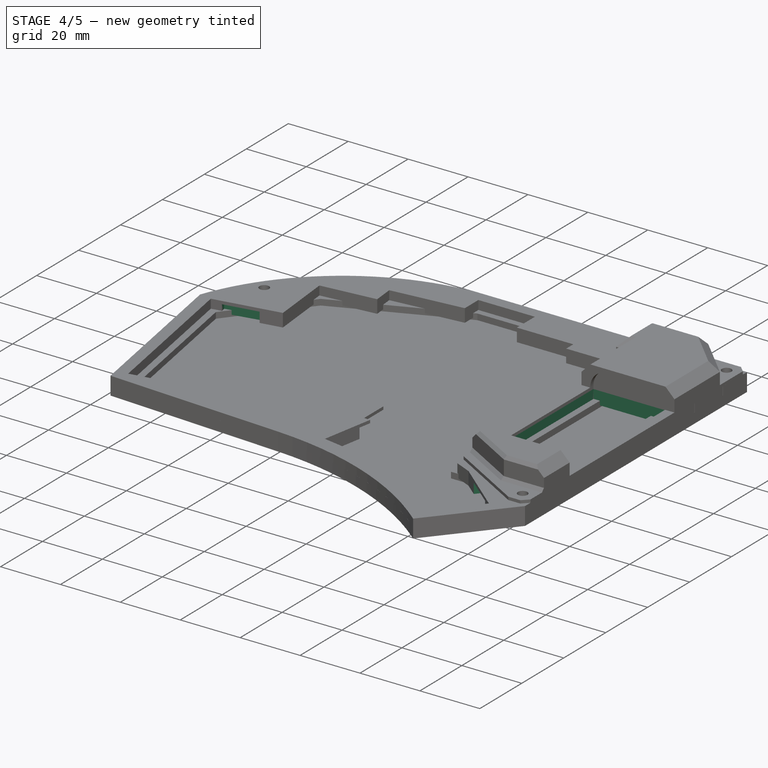
[diagram: stage 4 of 5 — iso view after this stage's code; geometry added in this stage tinted green]
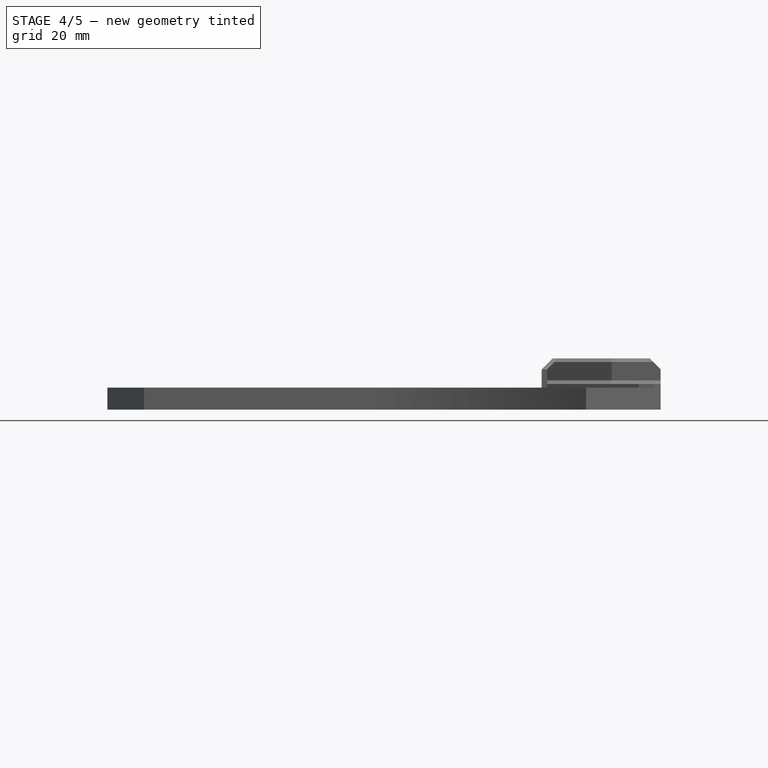
[diagram: stage 4 of 5 — front view after this stage's code; geometry added in this stage tinted green]
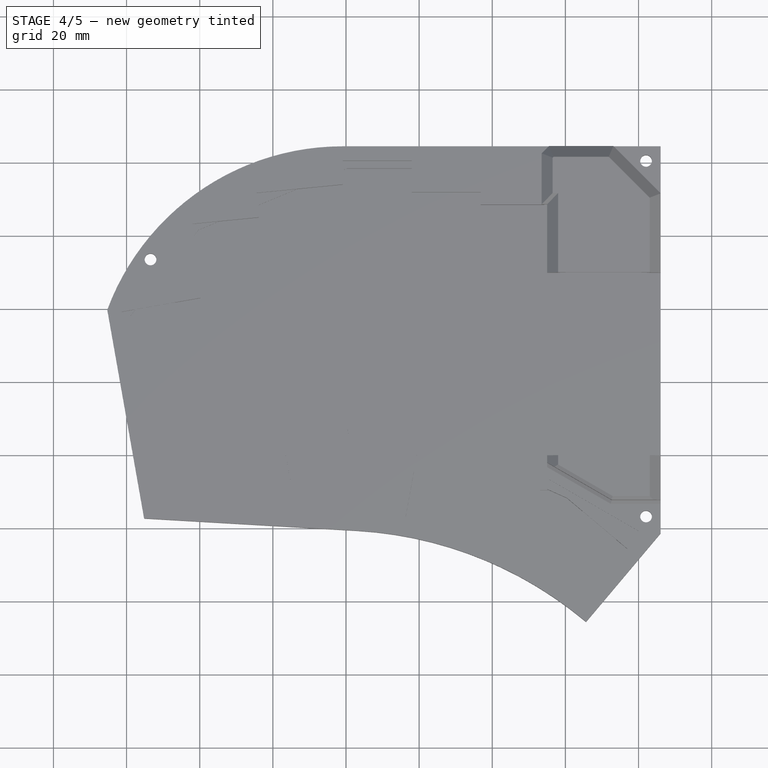
[diagram: stage 4 of 5 — top view after this stage's code; geometry added in this stage tinted green]
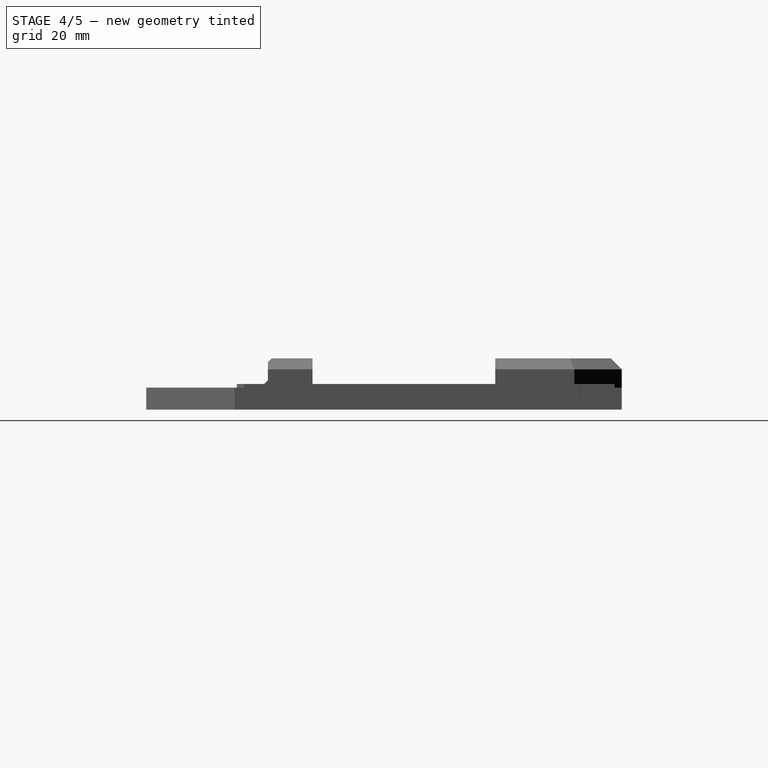
[diagram: stage 4 of 5 — right view after this stage's code; geometry added in this stage tinted green]
FEATURE [Sketcher::SketchObject] Sketch003  label="edge_cuts_proper002"
  ExternalGeometry = -> [Sketch]
  FullyConstrained = true
  MapMode = 5
  Support = -> [XY_Plane]
  sketch-geometry (28):
    g0: LineSegment StartX=19.05 StartY=-17.5425 StartZ=0 EndX=60.05 EndY=-0.5425 EndZ=0
    g1: LineSegment StartX=60.05 StartY=-0.5425 StartZ=0 EndX=138.05 EndY=-0.5425 EndZ=0
    g2: LineSegment StartX=138.05 StartY=-0.5425 StartZ=0 EndX=138.05 EndY=-28.5425 EndZ=0
    g3: LineSegment StartX=138.05 StartY=-28.5425 StartZ=0 EndX=114.05 EndY=-28.5425 EndZ=0
    g4: LineSegment StartX=114.05 StartY=-28.5425 StartZ=0 EndX=114.05 EndY=-88.5425 EndZ=0
    g5: LineSegment StartX=114.05 StartY=-88.5425 StartZ=0 EndX=128.05 EndY=-88.5425 EndZ=0
    g6: LineSegment StartX=128.05 StartY=-88.5425 StartZ=0 EndX=141.05 EndY=-99.5425 EndZ=0
    g7: LineSegment StartX=141.05 StartY=-99.5425 StartZ=0 EndX=125.05 EndY=-118.543 EndZ=0
    g8: LineSegment StartX=125.05 StartY=-118.543 StartZ=0 EndX=112.05 EndY=-107.543 EndZ=0
    g9: LineSegment StartX=112.05 StartY=-107.543 StartZ=0 EndX=95.05 EndY=-99.5425 EndZ=0
    g10: LineSegment StartX=95.05 StartY=-99.5425 StartZ=0 EndX=78.05 EndY=-96.5425 EndZ=0
    g11: LineSegment StartX=78.05 StartY=-96.5425 StartZ=0 EndX=9.05 EndY=-92.5425 EndZ=0
    g12: LineSegment StartX=9.05 StartY=-92.5425 StartZ=0 EndX=0.05 EndY=-41.5425 EndZ=0
    g13: LineSegment StartX=0.05 StartY=-41.5425 StartZ=0 EndX=19.05 EndY=-17.5425 EndZ=0
    g14: LineSegment StartX=0.229362 StartY=-40.8326 StartZ=0 EndX=9.41136 EndY=-92.864 EndZ=0
    g15: LineSegment StartX=9.41136 StartY=-92.864 StartZ=0 EndX=78.0151 EndY=-96.841 EndZ=0
    g16: LineSegment StartX=78.0151 StartY=-96.841 StartZ=0 EndX=94.9585 EndY=-99.831 EndZ=0
    g17: LineSegment StartX=94.9585 StartY=-99.831 StartZ=0 EndX=111.886 EndY=-107.797 EndZ=0
    g18: LineSegment StartX=111.886 StartY=-107.797 StartZ=0 EndX=125.086 EndY=-118.966 EndZ=0
    g19: LineSegment StartX=125.086 StartY=-118.966 StartZ=0 EndX=141.472 EndY=-99.5068 EndZ=0
    g20: LineSegment StartX=141.472 StartY=-99.5068 StartZ=0 EndX=128.16 EndY=-88.2425 EndZ=0
    g21: LineSegment StartX=128.16 StartY=-88.2425 StartZ=0 EndX=114.35 EndY=-88.2425 EndZ=0
    g22: LineSegment StartX=114.35 StartY=-88.2425 StartZ=0 EndX=114.35 EndY=-28.8425 EndZ=0
    g23: LineSegment StartX=114.35 StartY=-28.8425 StartZ=0 EndX=138.35 EndY=-28.8425 EndZ=0
    g24: LineSegment StartX=138.35 StartY=-28.8425 StartZ=0 EndX=138.35 EndY=-0.2425 EndZ=0
    g25: LineSegment StartX=138.35 StartY=-0.2425 StartZ=0 EndX=59.9903 EndY=-0.2425 EndZ=0
    g26: LineSegment StartX=59.9903 StartY=-0.2425 StartZ=0 EndX=18.8631 EndY=-17.2952 EndZ=0
    g27: LineSegment StartX=18.8631 StartY=-17.2952 StartZ=0 EndX=0.229362 EndY=-40.8326 EndZ=0
  constraints (70):
    c: Coincident(g0,g-3)
    c: Coincident(g0,g-16)
    c: Coincident(g1,g0)
    c: Coincident(g1,g-15)
    c: Coincident(g2,g1)
    c: Coincident(g2,g-14)
    c: Coincident(g3,g2)
    c: Coincident(g3,g-13)
    c: Coincident(g4,g3)
    c: Coincident(g4,g-12)
    c: Coincident(g5,g4)
    c: Coincident(g5,g-11)
    c: Coincident(g6,g5)
    c: Coincident(g6,g-10)
    c: Coincident(g7,g6)
    c: Coincident(g7,g-9)
    c: Coincident(g8,g7)
    c: Coincident(g8,g-8)
    c: Coincident(g9,g8)
    c: Coincident(g9,g-7)
    c: Coincident(g10,g9)
    c: Coincident(g10,g-6)
    c: Coincident(g11,g10)
    c: Coincident(g11,g-5)
    c: Coincident(g12,g11)
    c: Coincident(g12,g-4)
    c: Coincident(g13,g12)
    c: Coincident(g13,g0)
    c: Coincident(g15,g14)
    c: Coincident(g16,g15)
    c: Coincident(g17,g16)
    c: Coincident(g18,g17)
    c: Coincident(g19,g18)
    c: Coincident(g20,g19)
    c: Coincident(g21,g20)
    c: Horizontal(g21)
    c: Coincident(g22,g21)
    c: Vertical(g22)
    c: Coincident(g23,g22)
    c: Horizontal(g23)
    c: Coincident(g24,g23)
    c: Vertical(g24)
    c: Coincident(g25,g24)
    c: Horizontal(g25)
    c: Coincident(g26,g25)
    c: Coincident(g27,g26)
    c: Coincident(g27,g14)
    c: Parallel(g13,g27)
    c: Parallel(g0,g26)
    c: Parallel(g20,g6)
    c: Parallel(g19,g7)
    c: Parallel(g18,g8)
    c: Parallel(g9,g17)
    c: Parallel(g10,g16)
    c: Parallel(g11,g15)
    c: Parallel(g12,g14)
    c: Distance(g11,g14) = 0.3
    c: Distance(g14,g11) = 0.3
    c: Distance(g10,g16) = 0.3
    c: Distance(g9,g17) = 0.3
    c: Distance(g8,g18) = 0.3
    c: Distance(g7,g19) = 0.3
    c: Distance(g6,g20) = 0.3
    c: Distance(g5,g21) = 0.3
    c: Distance(g21,g4) = 0.3
    c: Distance(g22,g3) = 0.3
    c: Distance(g2,g24) = 0.3
    c: Distance(g1,g25) = 0.3
    c: Distance(g25,g0) = 0.3
    c: Distance(g26,g13) = 0.3
FEATURE [PartDesign::Pocket] Pocket
  BaseFeature = -> Pad
  Direction = (0,0,-1)
  Length = 1.6
  Length2 = 5
  Profile = -> Sketch003
  ReferenceAxis = -> Sketch003 [N_Axis]
  Reversed = true
  Type = 0
FEATURE [Sketcher::SketchObject] Sketch005
  AttachmentOffset = pos=(0,0,9) rot=(0,0,1;0rad)
  ExternalGeometry = -> [Sketch]
  FullyConstrained = true
  MapMode = 5
  Placement = pos=(0,0,9) rot=(0,0,1;0rad)
  Support = -> [XY_Plane]
  sketch-geometry (10):
    g0: LineSegment StartX=117.914 StartY=-28.5425 StartZ=0 EndX=142.914 EndY=-28.5425 EndZ=0
    g1: LineSegment StartX=142.914 StartY=-28.5425 StartZ=0 EndX=142.914 EndY=-90.5425 EndZ=0
    g2: LineSegment StartX=117.914 StartY=-81.5425 StartZ=0 EndX=117.914 EndY=-28.5425 EndZ=0
    g3: LineSegment StartX=117.914 StartY=-81.5425 StartZ=0 EndX=120.914 EndY=-81.5425 EndZ=0
    g4: LineSegment StartX=131.914 StartY=-90.5425 StartZ=0 EndX=142.914 EndY=-90.5425 EndZ=0
    g5: LineSegment StartX=131.914 StartY=-90.5425 StartZ=0 EndX=131.914 EndY=-86.5425 EndZ=0
    g6: LineSegment StartX=131.914 StartY=-86.5425 StartZ=0 EndX=120.914 EndY=-86.5425 EndZ=0
    g7: LineSegment StartX=120.914 StartY=-86.5425 StartZ=0 EndX=120.914 EndY=-81.5425 EndZ=0
    g8: LineSegment StartX=128.05 StartY=-88.5425 StartZ=0 EndX=141.05 EndY=-99.5425 EndZ=0
    g9: GeomPoint X=130.414 Y=-90.5425 Z=0
  constraints (28):
    c: Coincident(g0,g1)
    c: Coincident(g2,g0)
    c: Horizontal(g0)
    c: Vertical(g1)
    c: Vertical(g2)
    c: DistanceX(g0,g0) = 25
    c: DistanceY(g2,g2) = 53
    c: PointOnObject(g-5,g0)
    c: Coincident(g3,g2)
    c: Horizontal(g3)
    c: Coincident(g4,g1)
    c: Horizontal(g4)
    c: DistanceY(g4,g3) = 9
    c: Coincident(g5,g4)
    c: Vertical(g5)
    c: Coincident(g6,g5)
    c: Horizontal(g6)
    c: Coincident(g7,g6)
    c: Coincident(g7,g3)
    c: Vertical(g7)
    c: DistanceX(g3,g1) = 22
    c: DistanceX(g4,g4) = 11
    c: DistanceY(g7,g7) = 5
    c: Coincident(g8,g-6)
    c: Coincident(g8,g-7)
    c: PointOnObject(g9,g8)
    c: Horizontal(g9,g4)
    c: DistanceX(g9,g4) = 1.5
FEATURE [PartDesign::Pocket] Pocket002
  BaseFeature = -> Pocket
  Direction = (0,0,-1)
  Length = 5
  Length2 = 5
  Profile = -> Sketch005
  ReferenceAxis = -> Sketch005 [N_Axis]
  Type = 1
FEATURE [Sketcher::SketchObject] Sketch006
  FullyConstrained = false
  MapMode = 5
  Support = -> [XY_Plane]
  sketch-geometry (17):
    g0: LineSegment StartX=25.7633 StartY=-84.3676 StartZ=0 EndX=27.1434 EndY=-91.7483 EndZ=0
    g1: LineSegment StartX=27.1434 StartY=-91.7483 StartZ=0 EndX=49.8256 EndY=-88.628 EndZ=0
    g2: LineSegment StartX=25.7633 StartY=-84.3676 StartZ=0 EndX=58.4064 EndY=-67.4063 EndZ=0
    g3: LineSegment StartX=58.4064 StartY=-67.4063 StartZ=0 EndX=82.7661 EndY=-67.4063 EndZ=0
    g4: LineSegment StartX=82.7661 StartY=-67.4063 StartZ=0 EndX=82.4964 EndY=-84.2038 EndZ=0
    g5: LineSegment StartX=49.8256 StartY=-88.628 StartZ=0 EndX=57.799 EndY=-91.1061 EndZ=0
    g6: LineSegment StartX=57.799 StartY=-91.1061 StartZ=0 EndX=64.3508 EndY=-91.1061 EndZ=0
    g7: LineSegment StartX=64.3508 StartY=-91.1061 StartZ=0 EndX=65.1327 EndY=-83.4758 EndZ=0
    g8: LineSegment StartX=65.1327 StartY=-83.4758 StartZ=0 EndX=82.4964 EndY=-84.2038 EndZ=0
    g9: LineSegment StartX=129.721 StartY=-89.214 StartZ=0 EndX=122.834 EndY=-97.492 EndZ=0
    g10: LineSegment StartX=122.834 StartY=-97.492 StartZ=0 EndX=131.951 EndY=-105.638 EndZ=0
    g11: LineSegment StartX=131.951 StartY=-105.638 StartZ=0 EndX=138.794 EndY=-97.0947 EndZ=0
    g12: LineSegment StartX=138.794 StartY=-97.0947 StartZ=0 EndX=129.721 EndY=-89.214 EndZ=0
    g13: LineSegment StartX=1.72145 StartY=-38.7191 StartZ=0 EndX=2.51138 EndY=-42.6686 EndZ=0
    g14: LineSegment StartX=1.72145 StartY=-38.7191 StartZ=0 EndX=12.7802 EndY=-36.493 EndZ=0
    g15: LineSegment StartX=12.7802 StartY=-36.493 StartZ=0 EndX=13.8574 EndY=-40.8734 EndZ=0
    g16: LineSegment StartX=2.51138 StartY=-42.6686 StartZ=0 EndX=13.8574 EndY=-40.8734 EndZ=0
  constraints (19):
    c: Coincident(g1,g0)
    c: Coincident(g2,g0)
    c: Coincident(g3,g2)
    c: Horizontal(g3)
    c: Coincident(g4,g3)
    c: Coincident(g5,g1)
    c: Coincident(g6,g5)
    c: Horizontal(g6)
    c: Coincident(g7,g6)
    c: Coincident(g8,g7)
    c: Coincident(g8,g4)
    c: Coincident(g10,g9)
    c: Coincident(g11,g10)
    c: Coincident(g12,g11)
    c: Coincident(g12,g9)
    c: Coincident(g14,g13)
    c: Coincident(g15,g14)
    c: Coincident(g16,g13)
    c: Coincident(g16,g15)
FEATURE [PartDesign::Pocket] Pocket003
  BaseFeature = -> Pocket002
  Direction = (0,0,-1)
  Length = 5
  Length2 = 5
  Profile = -> Sketch006
  ReferenceAxis = -> Sketch006 [N_Axis]
  Reversed = true
  Type = 0
FEATURE [Sketcher::SketchObject] Sketch007
  FullyConstrained = false
  MapMode = 5
  Support = -> [XY_Plane]
  sketch-geometry (4):
    g0: LineSegment StartX=114.238 StartY=-0.183553 StartZ=0 EndX=139.85 EndY=-0.183553 EndZ=0
    g1: LineSegment StartX=139.85 StartY=-0.183553 StartZ=0 EndX=139.85 EndY=-27.1034 EndZ=0
    g2: LineSegment StartX=139.85 StartY=-27.1034 StartZ=0 EndX=114.238 EndY=-27.1034 EndZ=0
    g3: LineSegment StartX=114.238 StartY=-27.1034 StartZ=0 EndX=114.238 EndY=-0.183553 EndZ=0
  constraints (8):
    c: Coincident(g0,g1)
    c: Coincident(g1,g2)
    c: Coincident(g2,g3)
    c: Coincident(g3,g0)
    c: Horizontal(g0)
    c: Horizontal(g2)
    c: Vertical(g1)
    c: Vertical(g3)
FEATURE [PartDesign::Pocket] Pocket004
  BaseFeature = -> Pocket003
  Direction = (0,0,-1)
  Length = 9
  Length2 = 5
  Profile = -> Sketch007
  ReferenceAxis = -> Sketch007 [N_Axis]
  Reversed = true
  Type = 0
FEATURE [Sketcher::SketchObject] Sketch008
  AttachmentOffset = pos=(0,0,6) rot=(0,0,1;0rad)
  ExternalGeometry = -> [Pocket004]
  FullyConstrained = false
  MapMode = 5
  Placement = pos=(0,0,6) rot=(0,0,1;0rad)
  Support = -> [XY_Plane]
  sketch-geometry (4):
    g0: LineSegment StartX=136.164 StartY=-20.6474 StartZ=0 EndX=149.752 EndY=-20.6474 EndZ=0
    g1: LineSegment StartX=149.752 StartY=-20.6474 StartZ=0 EndX=149.752 EndY=-6.95473 EndZ=0
    g2: LineSegment StartX=149.752 StartY=-6.95473 StartZ=0 EndX=136.164 EndY=-6.95473 EndZ=0
    g3: LineSegment StartX=136.164 StartY=-6.95473 StartZ=0 EndX=136.164 EndY=-20.6474 EndZ=0
  constraints (8):
    c: Coincident(g0,g1)
    c: Coincident(g1,g2)
    c: Coincident(g2,g3)
    c: Coincident(g3,g0)
    c: Horizontal(g0)
    c: Horizontal(g2)
    c: Vertical(g1)
    c: Vertical(g3)
FEATURE [PartDesign::Pocket] Pocket005
  BaseFeature = -> Pocket004
  Direction = (0,0,-1)
  Length = 4
  Length2 = 5
  Profile = -> Sketch008
  ReferenceAxis = -> Sketch008 [N_Axis]
  Type = 0
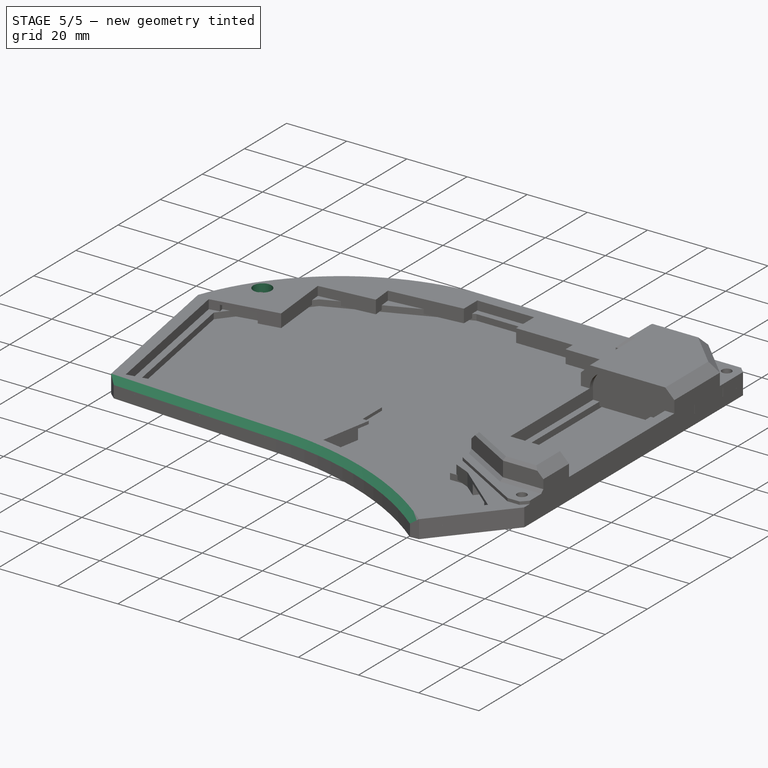
[diagram: stage 5 of 5 — iso view after this stage's code; geometry added in this stage tinted green]
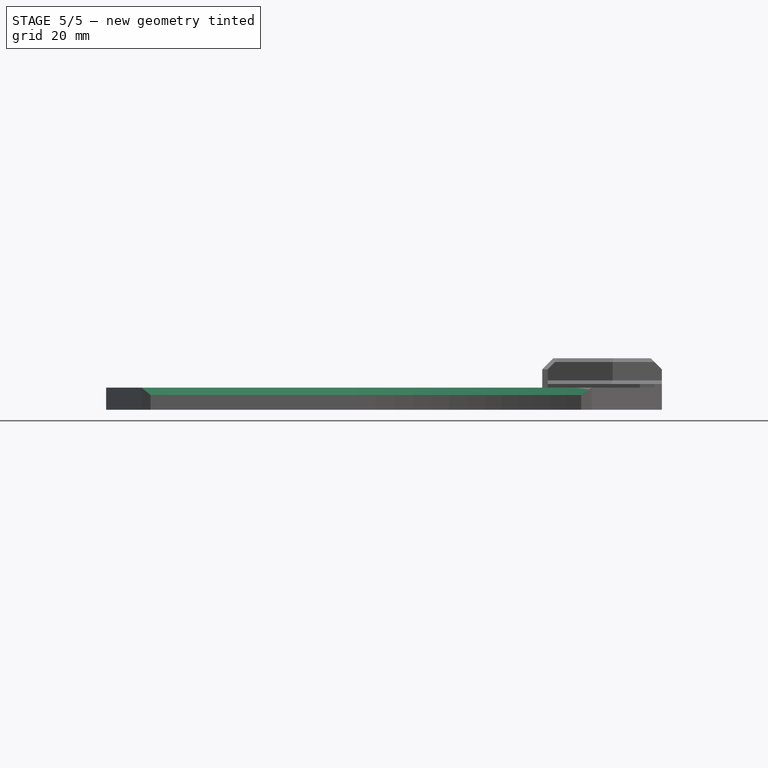
[diagram: stage 5 of 5 — front view after this stage's code; geometry added in this stage tinted green]
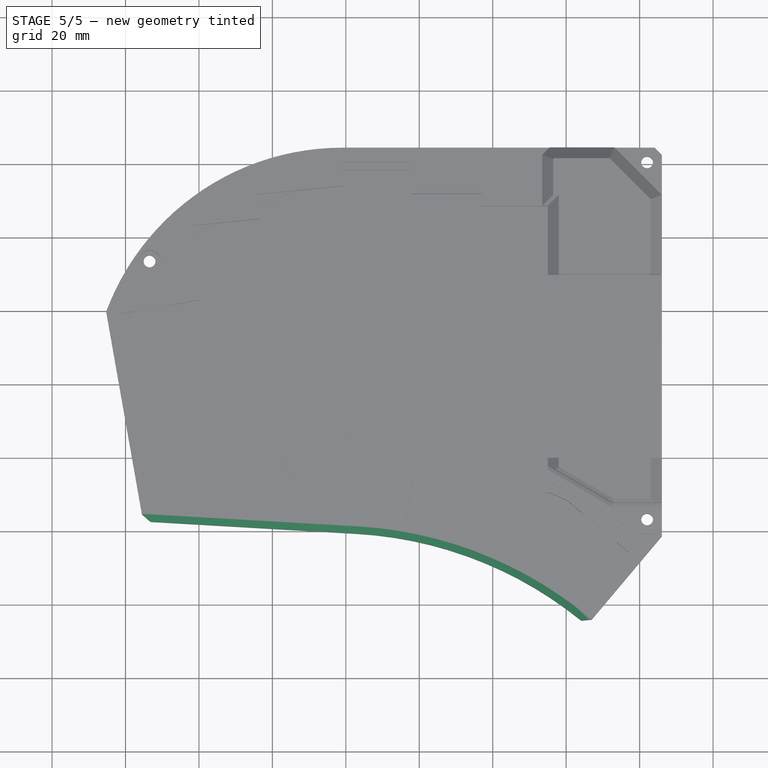
[diagram: stage 5 of 5 — top view after this stage's code; geometry added in this stage tinted green]
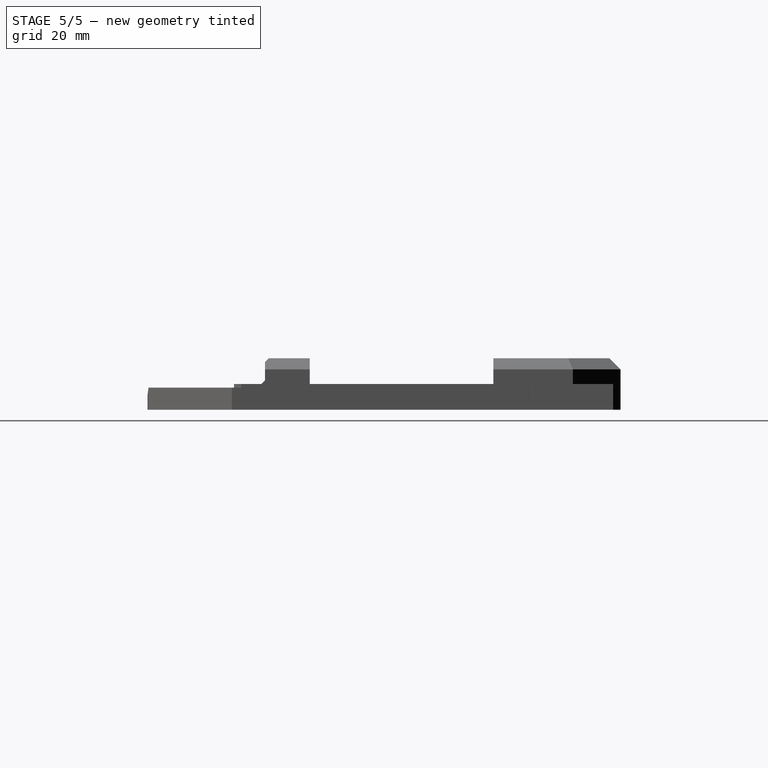
[diagram: stage 5 of 5 — right view after this stage's code; geometry added in this stage tinted green]
FEATURE [PartDesign::Chamfer] Chamfer
  Angle = 45
  Base = -> Pocket005 [Edge114,Edge2,Edge115]
  BaseFeature = -> Pocket005
  ChamferType = 0
  FlipDirection = false
  Size = 2
  Size2 = 1
  SupportTransform = false
  UseAllEdges = false
FEATURE [PartDesign::Chamfer] Chamfer001
  Angle = 45
  Base = -> Chamfer [Edge72,Edge74]
  BaseFeature = -> Chamfer
  ChamferType = 0
  FlipDirection = false
  Size = 2
  Size2 = 1
  SupportTransform = false
  UseAllEdges = false
FEATURE [PartDesign::Hole] Hole
  BaseFeature = -> Chamfer001
  CustomThreadClearance = 0
  Depth = 2.8
  DepthType = 0
  Diameter = 6
  DrillForDepth = false
  DrillPoint = 0
  DrillPointAngle = 118
  HoleCutCountersinkAngle = 90
  HoleCutCustomValues = false
  HoleCutDepth = 0
  HoleCutDiameter = 6.1
  HoleCutType = 0
  ModelThread = false
  Profile = -> Chamfer001 [Edge119]
  Tapered = false
  TaperedAngle = 90
  ThreadClass = 0
  ThreadDepth = 2.8
  ThreadDepthType = 0
  ThreadDirection = 0
  ThreadFit = 0
  ThreadSize = 0
  ThreadType = 0
  Threaded = false
  UseCustomThreadClearance = false
FEATURE [Sketcher::SketchObject] Sketch013  label="edge_cuts_proper007"
  AttachmentOffset = pos=(-70.9,59.5,0) rot=(0,0,1;0rad)
  ExternalGeometry = -> [Sketch]
  FullyConstrained = false
  MapMode = 5
  Placement = pos=(-70.9,59.5,0) rot=(0,0,1;0rad)
  Support = -> [XY_Plane]
  sketch-geometry (37):
    g0: LineSegment StartX=89.95 StartY=-77.0425 StartZ=0 EndX=130.95 EndY=-60.0425 EndZ=0
    g1: LineSegment StartX=130.95 StartY=-60.0425 StartZ=0 EndX=208.95 EndY=-60.0425 EndZ=0
    g2: LineSegment StartX=208.95 StartY=-60.0425 StartZ=0 EndX=208.95 EndY=-88.0425 EndZ=0
    g3: LineSegment StartX=208.95 StartY=-88.0425 StartZ=0 EndX=184.95 EndY=-88.0425 EndZ=0
    g4: LineSegment StartX=184.95 StartY=-88.0425 StartZ=0 EndX=184.95 EndY=-148.043 EndZ=0
    g5: LineSegment StartX=184.95 StartY=-148.043 StartZ=0 EndX=198.95 EndY=-148.043 EndZ=0
    g6: LineSegment StartX=198.95 StartY=-148.043 StartZ=0 EndX=211.95 EndY=-159.043 EndZ=0
    g7: LineSegment StartX=211.95 StartY=-159.043 StartZ=0 EndX=195.95 EndY=-178.043 EndZ=0
    g8: LineSegment StartX=195.95 StartY=-178.043 StartZ=0 EndX=182.95 EndY=-167.043 EndZ=0
    g9: LineSegment StartX=182.95 StartY=-167.043 StartZ=0 EndX=165.95 EndY=-159.043 EndZ=0
    g10: LineSegment StartX=165.95 StartY=-159.043 StartZ=0 EndX=148.95 EndY=-156.043 EndZ=0
    g11: LineSegment StartX=148.95 StartY=-156.043 StartZ=0 EndX=79.95 EndY=-152.043 EndZ=0
    g12: LineSegment StartX=79.95 StartY=-152.043 StartZ=0 EndX=70.95 EndY=-101.042 EndZ=0
    g13: LineSegment StartX=70.95 StartY=-101.042 StartZ=0 EndX=89.95 EndY=-77.0425 EndZ=0
    g14: LineSegment StartX=65.6358 StartY=-99.6998 StartZ=0 EndX=75.7132 EndY=-156.805 EndZ=0
    g15: LineSegment StartX=75.7132 StartY=-156.805 StartZ=0 EndX=133.969 EndY=-160.182 EndZ=0
    g16: ArcOfCircle CenterX=127.792 CenterY=-266.743 CenterZ=0 NormalX=0 NormalY=0 NormalZ=1 AngleXU=0 Radius=106.74 StartAngle=0.870903 EndAngle=1.51289
    g17: LineSegment StartX=196.546 StartY=-185.097 StartZ=0 EndX=216.95 EndY=-160.867 EndZ=0
    g18: LineSegment StartX=216.95 StartY=-160.867 StartZ=0 EndX=216.95 EndY=-55.0425 EndZ=0
    g19: LineSegment StartX=216.95 StartY=-55.0425 StartZ=0 EndX=129.955 EndY=-55.0425 EndZ=0
    g20: ArcOfCircle CenterX=129.955 CenterY=-123.689 CenterZ=0 NormalX=0 NormalY=0 NormalZ=1 AngleXU=0 Radius=68.6469 StartAngle=1.5708 EndAngle=2.78459
    g21: Circle CenterX=212.95 CenterY=-59.0425 CenterZ=0 NormalX=0 NormalY=0 NormalZ=1 AngleXU=0 Radius=1.6
    g22: Circle CenterX=212.95 CenterY=-156.303 CenterZ=0 NormalX=0 NormalY=0 NormalZ=1 AngleXU=0 Radius=1.6
    g23: Circle CenterX=77.4441 CenterY=-85.9816 CenterZ=0 NormalX=0 NormalY=0 NormalZ=1 AngleXU=0 Radius=1.6
    g24: LineSegment StartX=214.37 StartY=-56.4425 StartZ=0 EndX=215.55 EndY=-57.6224 EndZ=0
    g25: LineSegment StartX=215.55 StartY=-57.6224 StartZ=0 EndX=215.55 EndY=-160.356 EndZ=0
    g26: ArcOfCircle CenterX=127.792 CenterY=-266.743 CenterZ=0 NormalX=0 NormalY=0 NormalZ=1 AngleXU=0 Radius=108.14 StartAngle=0.894911 EndAngle=1.51289
    g27: LineSegment StartX=134.05 StartY=-158.785 StartZ=0 EndX=78.2768 EndY=-155.552 EndZ=0
    g28: LineSegment StartX=78.2768 StartY=-155.552 StartZ=0 EndX=76.6598 EndY=-154.113 EndZ=0
    g29: LineSegment StartX=76.6598 StartY=-154.113 StartZ=0 EndX=67.0811 EndY=-99.834 EndZ=0
    g30: ArcOfCircle CenterX=129.955 CenterY=-123.689 CenterZ=0 NormalX=0 NormalY=0 NormalZ=1 AngleXU=0 Radius=67.2469 StartAngle=1.5708 EndAngle=2.77895
    g31: LineSegment StartX=214.37 StartY=-56.4425 StartZ=0 EndX=129.955 EndY=-56.4425 EndZ=0
    g32: LineSegment StartX=214.95 StartY=-55.0425 StartZ=0 EndX=216.95 EndY=-57.0425 EndZ=0
    g33: LineSegment StartX=195.004 StartY=-183.823 StartZ=0 EndX=197.835 EndY=-183.567 EndZ=0
    g34: LineSegment StartX=77.7099 StartY=-156.921 StartZ=0 EndX=75.3657 EndY=-154.836 EndZ=0
    g35: LineSegment StartX=195.442 StartY=-182.378 StartZ=0 EndX=197.135 EndY=-182.225 EndZ=0
    g36: LineSegment StartX=197.135 StartY=-182.225 StartZ=0 EndX=215.55 EndY=-160.356 EndZ=0
  constraints (101):
    c: Coincident(g0,g-3)
    c: Coincident(g0,g-16)
    c: Coincident(g1,g0)
    c: Coincident(g1,g-15)
    c: Coincident(g2,g1)
    c: Coincident(g2,g-14)
    c: Coincident(g3,g2)
    c: Coincident(g3,g-13)
    c: Coincident(g4,g3)
    c: Coincident(g4,g-12)
    c: Coincident(g5,g4)
    c: Coincident(g5,g-11)
    c: Coincident(g6,g5)
    c: Coincident(g6,g-10)
    c: Coincident(g7,g6)
    c: Coincident(g7,g-9)
    c: Coincident(g8,g7)
    c: Coincident(g8,g-8)
    c: Coincident(g9,g8)
    c: Coincident(g9,g-7)
    c: Coincident(g10,g9)
    c: Coincident(g10,g-6)
    c: Coincident(g11,g10)
    c: Coincident(g11,g-5)
    c: Coincident(g12,g11)
    c: Coincident(g12,g-4)
    c: Coincident(g13,g12)
    c: Coincident(g13,g0)
    c: Coincident(g15,g14)
    c: Tangent(g16,g15) = 1.5708
    c: Coincident(g17,g16)
    c: Parallel(g17,g7)
    c: Parallel(g11,g15)
    c: Parallel(g14,g12)
    c: Perpendicular(g16,g17)
    c: Coincident(g18,g17)
    c: Vertical(g18)
    c: Coincident(g19,g18)
    c: Horizontal(g19)
    c: Coincident(g20,g14)
    c: Tangent(g20,g19) = -1.5708
    c: Distance(g12,g14) = 5
    c: Distance(g1,g19) = 5
    c: Distance(g6,g17) = 5
    c: Distance(g11,g15) = 5
    c: Distance(g16,g8) = 5
    c: Distance(g6,g18) = 5
    c: Distance(g14,g13) = 5
    c: Distance(g19,g0) = 5
    c: DistanceX(g1,g18) = 8
    c: Radius(g21) = 1.6
    c: Equal(g21,g22)
    c: Vertical(g22,g21)
    c: DistanceX(g21,g18) = 4
    c: DistanceY(g21,g18) = 4
    c: Distance(g22,g17) = 6
    c: Equal(g21,g23)
    c: DistanceY(g22,g21) = 97.26
    c: Radius(g20) = 68.6469
    c: Distance(g23,g20) = 64.6469
    c: Radius(g16) = 106.74
    c: Coincident(g25,g24)
    c: Vertical(g25)
    c: Coincident(g26,g16)
    c: Coincident(g28,g27)
    c: Coincident(g29,g28)
    c: Coincident(g30,g20)
    c: Coincident(g30,g29)
    c: Coincident(g31,g24)
    c: Horizontal(g31)
    c: PointOnObject(g32,g19)
    c: PointOnObject(g32,g18)
    c: PointOnObject(g33,g16)
    c: PointOnObject(g33,g17)
    c: PointOnObject(g34,g15)
    c: PointOnObject(g34,g14)
    c: Distance(g14,g34) = 2
    c: Distance(g14,g34) = 2
    c: DistanceX(g32,g18) = 2
    c: DistanceY(g32,g18) = 2
    c: Distance(g33,g16) = 2
    c: Distance(g33,g16) = 2
    c: Coincident(g35,g26)
    c: Coincident(g36,g35)
    c: Coincident(g36,g25)
    c: Parallel(g17,g36)
    c: Parallel(g33,g35)
    c: Parallel(g14,g29)
    c: Parallel(g28,g34)
    c: Distance(g19,g30) = 1.4
    c: Distance(g24,g32) = 1.4
    c: Distance(g24,g18) = 1.4
    c: Parallel(g24,g32)
    c: Distance(g25,g17) = 1.4
    c: Distance(g26,g33) = 1.4
    c: Tangent(g27,g26) = -1.5708
    c: Tangent(g31,g30) = -1.5708
    c: Distance(g26,g15) = 1.4
    c: Distance(g27,g15) = 1.4
    c: Distance(g27,g34) = 1.4
    c: Distance(g28,g14) = 1.4
FEATURE [PartDesign::Pocket] Pocket009
  BaseFeature = -> Hole
  Direction = (0,0,-1)
  Length = 0.6
  Length2 = 5
  Profile = -> Sketch013
  ReferenceAxis = -> Sketch013 [N_Axis]
  Reversed = true
  Type = 0
FEATURE [PartDesign::Pocket] Pocket011
  BaseFeature = -> Pocket009
  Direction = (0,0,-1)
  Length = 4
  Length2 = 5
  Profile = -> Sketch015
  ReferenceAxis = -> Sketch015 [N_Axis]
  Reversed = true
  Type = 0
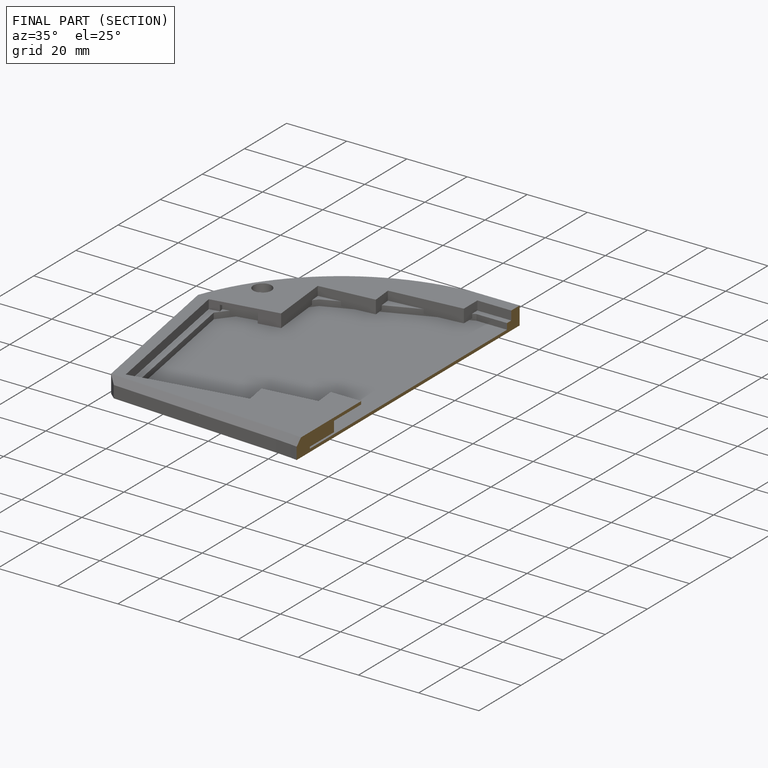
[diagram: finished part — half-section view (interior)]
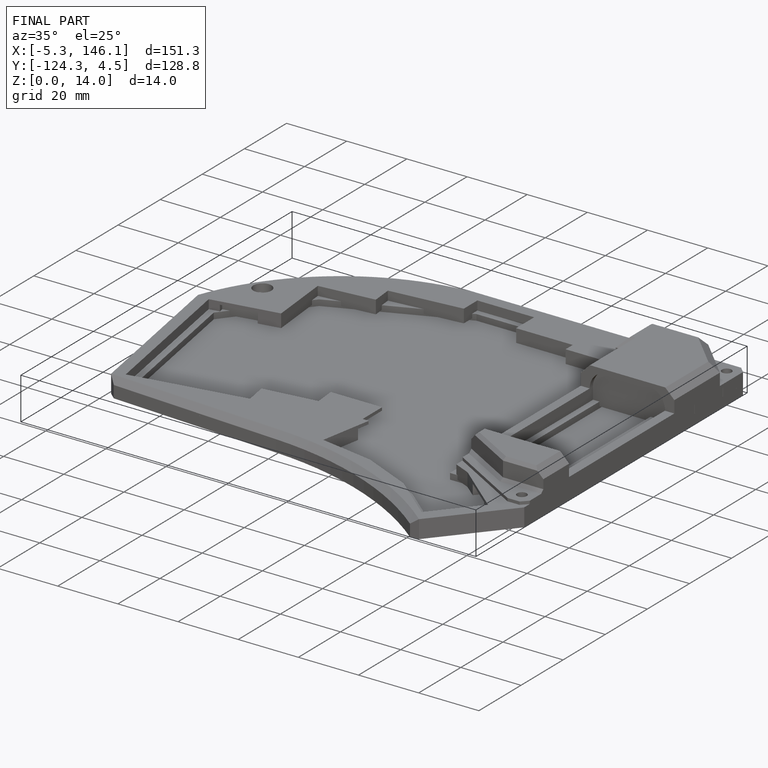
[diagram: finished part — iso view with bounding-box wireframe]
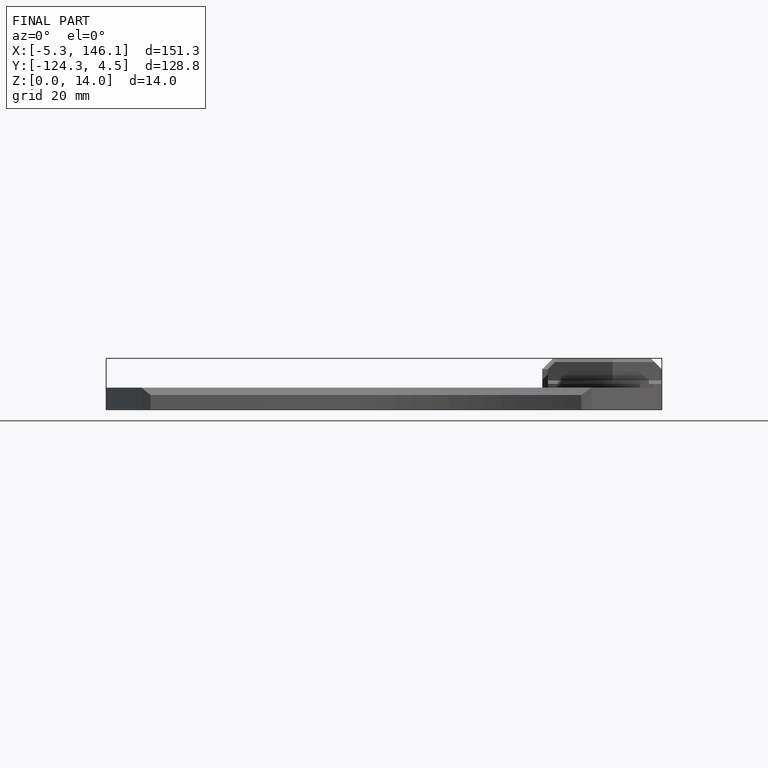
[diagram: finished part — front view with bounding-box wireframe]
